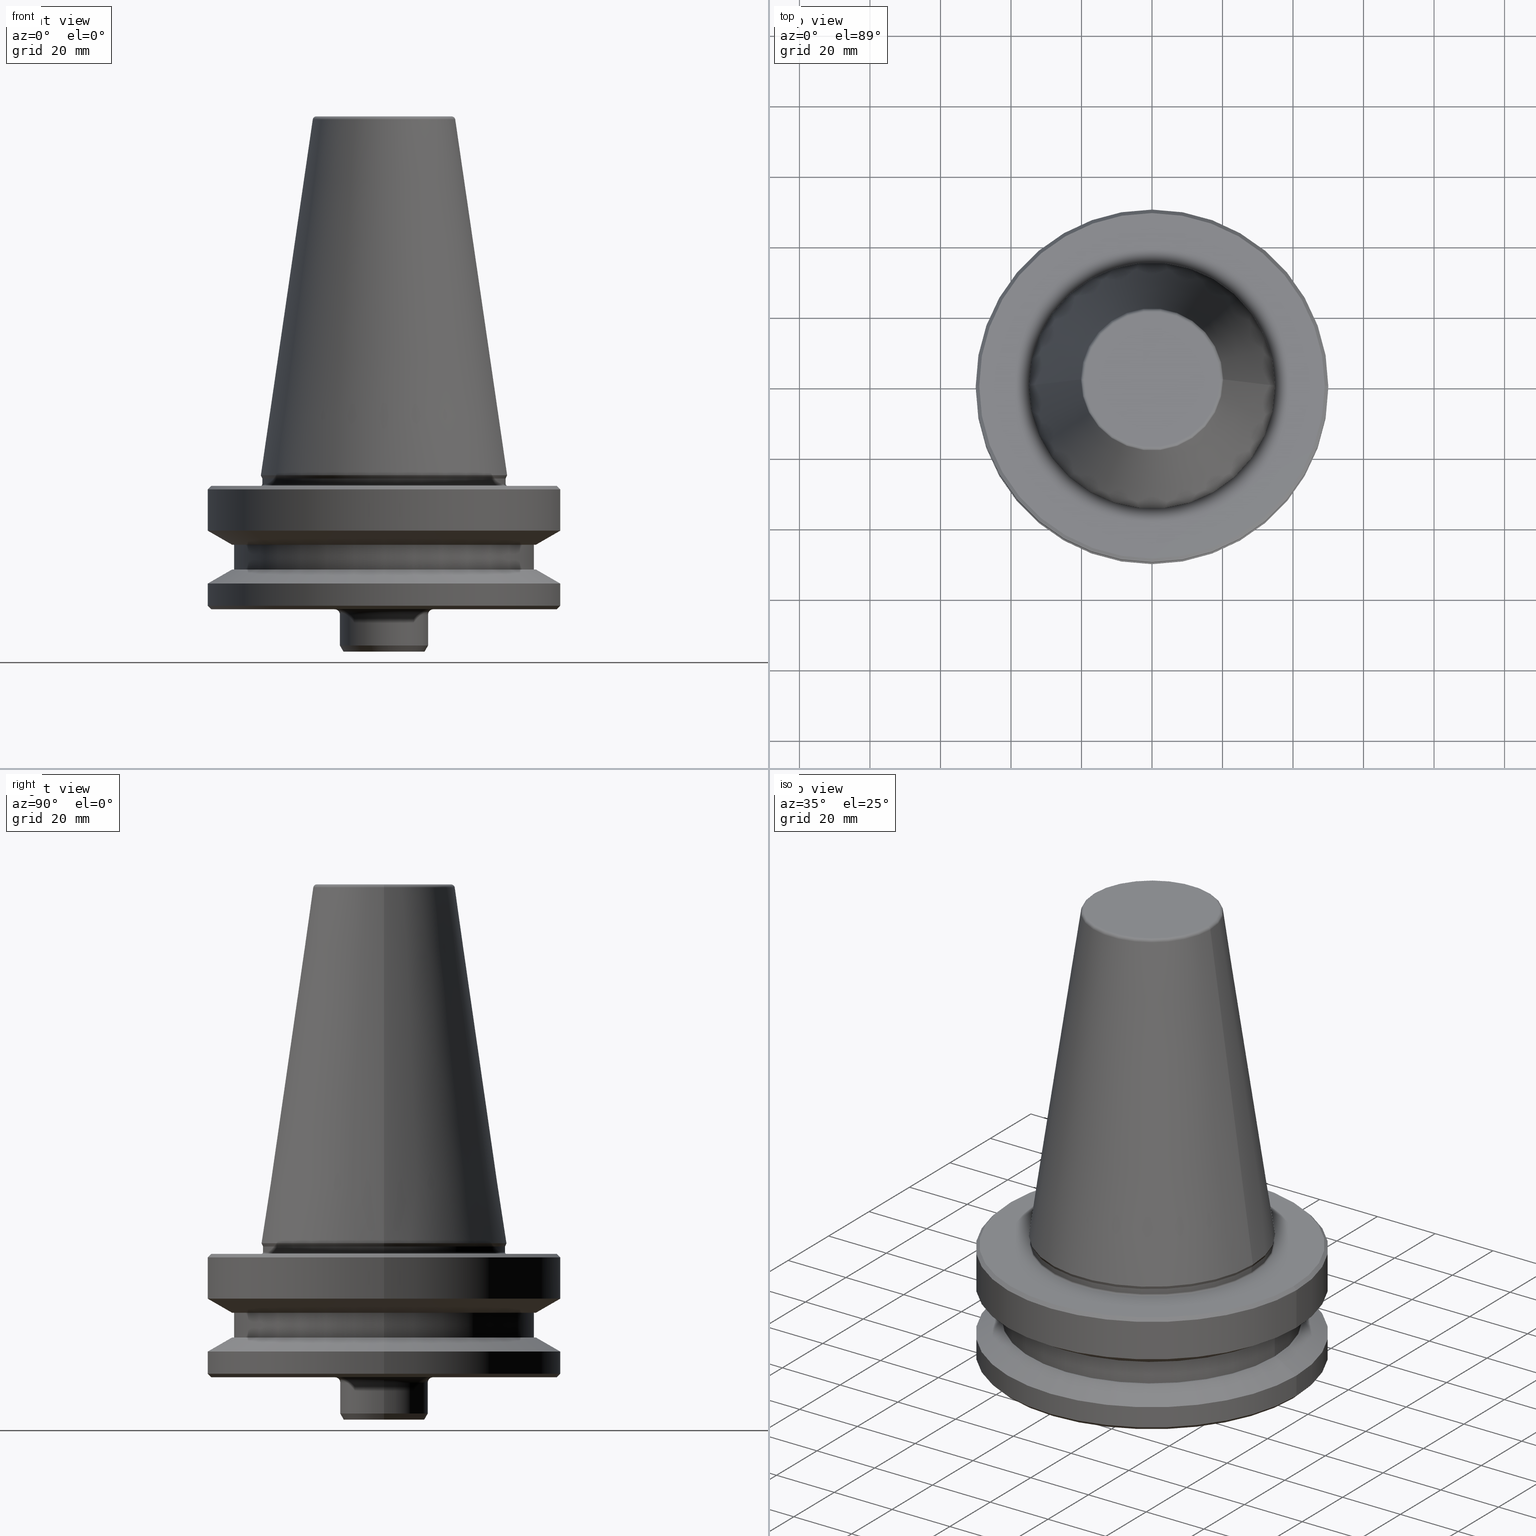
[diagram: canonical four-view strip — front | top / right | iso, engineering-drawing reading convention]
A machine part, canonical four-view strip (front | top / right | iso — engineering-drawing reading convention). The complete STEP part file that produces these views, byte-faithful:
ISO-10303-21;
HEADER;
FILE_DESCRIPTION (( 'STEP AP203' ),
    '1' );
FILE_NAME ('BT50 MT01 050 6.3G 15000 SL.STEP',
    '2019-05-24T05:06:06',
    ( '' ),
    ( '' ),
    'SwSTEP 2.0',
    'SolidWorks 2014',
    '' );
FILE_SCHEMA (( 'CONFIG_CONTROL_DESIGN' ));
ENDSEC;

DATA;
#1 = DIRECTION ( 'NONE',  ( -0.0000000000000000000, -0.0000000000000000000, 1.000000000000000000 ) ) ;
#2 = AXIS2_PLACEMENT_3D ( 'NONE', #58, #611, #130 ) ;
#3 = ORIENTED_EDGE ( 'NONE', *, *, #341, .T. ) ;
#4 = FACE_BOUND ( 'NONE', #266, .T. ) ;
#5 = CARTESIAN_POINT ( 'NONE',  ( 0.0000000000000000000, 11.50000000000027700, -49.99999999994098900 ) ) ;
#6 = EDGE_CURVE ( 'NONE', #360, #572, #415, .T. ) ;
#7 = CARTESIAN_POINT ( 'NONE',  ( 0.0000000000000000000, 0.0000000000000000000, -2.500000000001723100 ) ) ;
#8 = LINE ( 'NONE', #367, #169 ) ;
#9 = DIRECTION ( 'NONE',  ( -0.0000000000000000000, -0.0000000000000000000, 1.000000000000000000 ) ) ;
#10 = AXIS2_PLACEMENT_3D ( 'NONE', #356, #903, #431 ) ;
#11 = ORIENTED_EDGE ( 'NONE', *, *, #155, .T. ) ;
#12 = EDGE_CURVE ( 'NONE', #797, #309, #768, .T. ) ;
#13 = CIRCLE ( 'NONE', #26, 12.49999999999973400 ) ;
#14 = VERTEX_POINT ( 'NONE', #977 ) ;
#15 = EDGE_CURVE ( 'NONE', #566, #395, #452, .T. ) ;
#16 = FACE_OUTER_BOUND ( 'NONE', #398, .T. ) ;
#17 = APPROVAL_STATUS ( 'not_yet_approved' ) ;
#18 = VERTEX_POINT ( 'NONE', #202 ) ;
#19 = EDGE_LOOP ( 'NONE', ( #101, #235, #921, #789 ) ) ;
#20 = DIRECTION ( 'NONE',  ( -0.0000000000000000000, -0.0000000000000000000, 1.000000000000000000 ) ) ;
#21 = AXIS2_PLACEMENT_3D ( 'NONE', #775, #382, #491 ) ;
#22 = EDGE_CURVE ( 'NONE', #625, #395, #966, .T. ) ;
#23 = CARTESIAN_POINT ( 'NONE',  ( 0.0000000000000000000, 19.21428366486965800, 101.7999999999988900 ) ) ;
#24 = EDGE_LOOP ( 'NONE', ( #562, #786 ) ) ;
#25 = FACE_OUTER_BOUND ( 'NONE', #824, .T. ) ;
#26 = AXIS2_PLACEMENT_3D ( 'NONE', #183, #719, #258 ) ;
#27 = ORIENTED_EDGE ( 'NONE', *, *, #168, .F. ) ;
#28 = AXIS2_PLACEMENT_3D ( 'NONE', #441, #987, #532 ) ;
#29 = DIRECTION ( 'NONE',  ( -0.4999999999999811800, 6.123233995736535500E-017, 0.8660254037844494800 ) ) ;
#30 = EDGE_CURVE ( 'NONE', #811, #14, #914, .T. ) ;
#31 = DIRECTION ( 'NONE',  ( 1.000000000000000000, 0.0000000000000000000, 0.0000000000000000000 ) ) ;
#32 = FACE_OUTER_BOUND ( 'NONE', #116, .T. ) ;
#33 = CIRCLE ( 'NONE', #159, 34.49999999999997200 ) ;
#34 = PERSON_AND_ORGANIZATION_ROLE ( 'creator' ) ;
#35 = AXIS2_PLACEMENT_3D ( 'NONE', #554, #75, #630 ) ;
#36 = EDGE_CURVE ( 'NONE', #300, #654, #499, .T. ) ;
#37 = CARTESIAN_POINT ( 'NONE',  ( 34.92499999999964900, 0.0000000000000000000, -1.084202172485504400E-016 ) ) ;
#38 = CONICAL_SURFACE ( 'NONE', #573, 34.92499999999964900, 0.1448138426689043500 ) ;
#39 = ORIENTED_EDGE ( 'NONE', *, *, #725, .T. ) ;
#40 = CARTESIAN_POINT ( 'NONE',  ( 13.99999999999976200, 0.0000000000000000000, -39.49999999994122400 ) ) ;
#41 = DIRECTION ( 'NONE',  ( -0.0000000000000000000, -0.0000000000000000000, 1.000000000000000000 ) ) ;
#42 = ORIENTED_EDGE ( 'NONE', *, *, #725, .F. ) ;
#43 = AXIS2_PLACEMENT_3D ( 'NONE', #832, #934, #508 ) ;
#44 = CARTESIAN_POINT ( 'NONE',  ( 0.0000000000000000000, 0.0000000000000000000, 108.3108805077434200 ) ) ;
#45 = TOROIDAL_SURFACE ( 'NONE', #641, 13.99999999999976200, 1.500000000000032600 ) ;
#46 = CIRCLE ( 'NONE', #170, 49.00000000000015600 ) ;
#47 = CC_DESIGN_APPROVAL ( #390, ( #433 ) ) ;
#48 = CARTESIAN_POINT ( 'NONE',  ( -48.99999999999970900, 6.062001655779369300E-015, -37.99999999994118100 ) ) ;
#49 = DIRECTION ( 'NONE',  ( -0.0000000000000000000, -0.0000000000000000000, 1.000000000000000000 ) ) ;
#50 = CONICAL_SURFACE ( 'NONE', #767, 50.00000000000027000, 0.7853981633974482800 ) ;
#51 = DIRECTION ( 'NONE',  ( 1.000000000000000000, 0.0000000000000000000, 0.0000000000000000000 ) ) ;
#52 = CARTESIAN_POINT ( 'NONE',  ( -48.99999999999970900, 6.000769315821995400E-015, -37.99999999994118100 ) ) ;
#53 = CIRCLE ( 'NONE', #178, 34.50000000000019900 ) ;
#54 = DIRECTION ( 'NONE',  ( 0.4999999999999811800, 0.0000000000000000000, 0.8660254037844494800 ) ) ;
#55 = DIRECTION ( 'NONE',  ( 0.4226182617406567000, 0.0000000000000000000, 0.9063077870366700300 ) ) ;
#56 = EDGE_LOOP ( 'NONE', ( #901, #91, #796, #596 ) ) ;
#57 = DIRECTION ( 'NONE',  ( 1.000000000000000000, 0.0000000000000000000, 0.0000000000000000000 ) ) ;
#58 = CARTESIAN_POINT ( 'NONE',  ( 0.0000000000000000000, 0.0000000000000000000, -39.49999999994123800 ) ) ;
#59 = EDGE_CURVE ( 'NONE', #631, #540, #8, .T. ) ;
#60 = ORIENTED_EDGE ( 'NONE', *, *, #66, .T. ) ;
#61 = CC_DESIGN_DATE_AND_TIME_ASSIGNMENT ( #358, #477, ( #673 ) ) ;
#62 = CARTESIAN_POINT ( 'NONE',  ( -50.00000000000027000, 6.123233995736798400E-015, -4.000000000001335800 ) ) ;
#63 = FACE_OUTER_BOUND ( 'NONE', #106, .T. ) ;
#64 = CONICAL_SURFACE ( 'NONE', #855, 43.07217782649175300, 1.047197551196595400 ) ;
#65 = DIRECTION ( 'NONE',  ( 1.000000000000000000, 0.0000000000000000000, 0.0000000000000000000 ) ) ;
#66 = EDGE_CURVE ( 'NONE', #85, #360, #506, .T. ) ;
#67 = ORIENTED_EDGE ( 'NONE', *, *, #419, .F. ) ;
#68 = PERSON_AND_ORGANIZATION ( #112, #458 ) ;
#69 = EDGE_CURVE ( 'NONE', #378, #18, #544, .T. ) ;
#70 = LINE ( 'NONE', #52, #720 ) ;
#71 = AXIS2_PLACEMENT_3D ( 'NONE', #985, #689, #222 ) ;
#72 = CARTESIAN_POINT ( 'NONE',  ( -34.49999999999997200, 4.225031457058372100E-015, -0.9114154412159791700 ) ) ;
#73 = FACE_OUTER_BOUND ( 'NONE', #621, .T. ) ;
#74 = DIRECTION ( 'NONE',  ( -0.0000000000000000000, -0.0000000000000000000, 1.000000000000000000 ) ) ;
#75 = DIRECTION ( 'NONE',  ( 0.0000000000000000000, -1.000000000000000000, 0.0000000000000000000 ) ) ;
#76 = DIRECTION ( 'NONE',  ( 1.000000000000000000, 0.0000000000000000000, 0.0000000000000000000 ) ) ;
#77 = VERTEX_POINT ( 'NONE', #456 ) ;
#78 = DIRECTION ( 'NONE',  ( 1.000000000000000000, 0.0000000000000000000, 0.0000000000000000000 ) ) ;
#79 = CARTESIAN_POINT ( 'NONE',  ( 49.99999999999982200, 0.0000000000000000000, -36.99999999994106800 ) ) ;
#80 = EDGE_CURVE ( 'NONE', #566, #256, #822, .T. ) ;
#81 = COORDINATED_UNIVERSAL_TIME_OFFSET ( 5, 30, .AHEAD. ) ;
#82 = LINE ( 'NONE', #647, #878 ) ;
#83 = ORIENTED_EDGE ( 'NONE', *, *, #22, .T. ) ;
#84 = EDGE_CURVE ( 'NONE', #18, #572, #650, .T. ) ;
#85 = VERTEX_POINT ( 'NONE', #225 ) ;
#86 = LINE ( 'NONE', #369, #252 ) ;
#87 = DIRECTION ( 'NONE',  ( 1.000000000000000000, 0.0000000000000000000, 0.0000000000000000000 ) ) ;
#88 = FACE_OUTER_BOUND ( 'NONE', #492, .T. ) ;
#89 = CARTESIAN_POINT ( 'NONE',  ( 48.99999999999970900, 0.0000000000000000000, -37.99999999994118100 ) ) ;
#90 = LINE ( 'NONE', #89, #179 ) ;
#91 = ORIENTED_EDGE ( 'NONE', *, *, #220, .T. ) ;
#92 = AXIS2_PLACEMENT_3D ( 'NONE', #995, #539, #65 ) ;
#93 = MANIFOLD_SOLID_BREP ( 'Revolve1', #623 ) ;
#94 = EDGE_CURVE ( 'NONE', #759, #639, #693, .T. ) ;
#95 = AXIS2_PLACEMENT_3D ( 'NONE', #440, #746, #586 ) ;
#96 = ORIENTED_EDGE ( 'NONE', *, *, #366, .F. ) ;
#97 = EDGE_LOOP ( 'NONE', ( #578, #847, #860, #480 ) ) ;
#98 = EDGE_CURVE ( 'NONE', #961, #391, #489, .T. ) ;
#99 = CARTESIAN_POINT ( 'NONE',  ( -43.07217782649175300, 5.274820470751872700E-015, -19.70000000000070300 ) ) ;
#100 = APPLICATION_PROTOCOL_DEFINITION ( 'international standard', 'config_control_design', 1994, #956 ) ;
#101 = ORIENTED_EDGE ( 'NONE', *, *, #619, .F. ) ;
#102 = DIRECTION ( 'NONE',  ( -0.0000000000000000000, -0.0000000000000000000, 1.000000000000000000 ) ) ;
#103 = CC_DESIGN_PERSON_AND_ORGANIZATION_ASSIGNMENT ( #638, #880, ( #433 ) ) ;
#104 = DIRECTION ( 'NONE',  ( -0.0000000000000000000, -0.0000000000000000000, 1.000000000000000000 ) ) ;
#105 = AXIS2_PLACEMENT_3D ( 'NONE', #413, #962, #505 ) ;
#106 = EDGE_LOOP ( 'NONE', ( #703, #210, #96, #1000 ) ) ;
#107 = EDGE_CURVE ( 'NONE', #759, #268, #90, .T. ) ;
#108 = DIRECTION ( 'NONE',  ( -0.0000000000000000000, -0.0000000000000000000, 1.000000000000000000 ) ) ;
#109 = ADVANCED_FACE ( 'NONE', ( #402 ), #50, .T. ) ;
#110 = FACE_OUTER_BOUND ( 'NONE', #651, .T. ) ;
#111 = DIRECTION ( 'NONE',  ( 1.000000000000000000, 0.0000000000000000000, 0.0000000000000000000 ) ) ;
#112 = PERSON ( 'UNSPECIFIED', 'UNSPECIFIED', 'UNSPECIFIED', ('UNSPECIFIED'), ('UNSPECIFIED'), ('UNSPECIFIED') ) ;
#113 = DIRECTION ( 'NONE',  ( 0.0000000000000000000, 0.0000000000000000000, -1.000000000000000000 ) ) ;
#114 = EDGE_CURVE ( 'NONE', #856, #268, #784, .T. ) ;
#115 = CARTESIAN_POINT ( 'NONE',  ( 0.0000000000000000000, 0.0000000000000000000, -3.000000000001223900 ) ) ;
#116 = EDGE_LOOP ( 'NONE', ( #593, #362, #138, #999 ) ) ;
#117 = ADVANCED_FACE ( 'NONE', ( #243 ), #792, .T. ) ;
#118 = FACE_OUTER_BOUND ( 'NONE', #375, .T. ) ;
#119 = CARTESIAN_POINT ( 'NONE',  ( 42.49999999999975800, 0.0000000000000000000, -26.69999999993998000 ) ) ;
#120 = AXIS2_PLACEMENT_3D ( 'NONE', #189, #104, #727 ) ;
#121 = ORIENTED_EDGE ( 'NONE', *, *, #944, .T. ) ;
#122 = ADVANCED_FACE ( 'NONE', ( #497 ), #902, .T. ) ;
#123 = DIRECTION ( 'NONE',  ( -0.0000000000000000000, -0.0000000000000000000, 1.000000000000000000 ) ) ;
#124 = CARTESIAN_POINT ( 'NONE',  ( 0.0000000000000000000, 0.0000000000000000000, -0.9114154412159791700 ) ) ;
#125 = EDGE_CURVE ( 'NONE', #77, #761, #536, .T. ) ;
#126 = EDGE_LOOP ( 'NONE', ( #182, #558, #150, #257 ) ) ;
#127 = ADVANCED_FACE ( 'NONE', ( #227 ), #685, .T. ) ;
#128 = FACE_OUTER_BOUND ( 'NONE', #948, .T. ) ;
#129 = FACE_OUTER_BOUND ( 'NONE', #570, .T. ) ;
#130 = DIRECTION ( 'NONE',  ( 1.000000000000000000, 0.0000000000000000000, 0.0000000000000000000 ) ) ;
#131 = EDGE_CURVE ( 'NONE', #391, #783, #648, .T. ) ;
#132 = AXIS2_PLACEMENT_3D ( 'NONE', #204, #123, #602 ) ;
#133 = VECTOR ( 'NONE', #233, 999.9999999999998900 ) ;
#134 = ORIENTED_EDGE ( 'NONE', *, *, #15, .T. ) ;
#135 = DIRECTION ( 'NONE',  ( -0.0000000000000000000, -0.0000000000000000000, 1.000000000000000000 ) ) ;
#136 = PRODUCT_DEFINITION_FORMATION_WITH_SPECIFIED_SOURCE ( 'ANY', '', #662, .NOT_KNOWN. ) ;
#137 = ORIENTED_EDGE ( 'NONE', *, *, #296, .F. ) ;
#138 = ORIENTED_EDGE ( 'NONE', *, *, #535, .T. ) ;
#139 = AXIS2_PLACEMENT_3D ( 'NONE', #302, #843, #380 ) ;
#140 = ORIENTED_EDGE ( 'NONE', *, *, #561, .T. ) ;
#141 = AXIS2_PLACEMENT_3D ( 'NONE', #124, #205, #974 ) ;
#142 = DIRECTION ( 'NONE',  ( 1.000000000000000000, 0.0000000000000000000, 0.0000000000000000000 ) ) ;
#143 = CIRCLE ( 'NONE', #841, 49.99999999999982200 ) ;
#144 = FACE_BOUND ( 'NONE', #24, .T. ) ;
#145 = DIRECTION ( 'NONE',  ( -0.0000000000000000000, -0.0000000000000000000, 1.000000000000000000 ) ) ;
#146 = CIRCLE ( 'NONE', #139, 50.00000000000027000 ) ;
#147 = DIRECTION ( 'NONE',  ( -0.0000000000000000000, -0.0000000000000000000, 1.000000000000000000 ) ) ;
#148 = PERSON_AND_ORGANIZATION ( #112, #458 ) ;
#149 = PLANE ( 'NONE',  #161 ) ;
#150 = ORIENTED_EDGE ( 'NONE', *, *, #584, .F. ) ;
#151 = CARTESIAN_POINT ( 'NONE',  ( 0.0000000000000000000, 0.0000000000000000000, -30.69977999671412400 ) ) ;
#152 = EDGE_CURVE ( 'NONE', #870, #844, #969, .T. ) ;
#153 = CARTESIAN_POINT ( 'NONE',  ( 34.49999999999997200, 0.0000000000000000000, -0.9114154412159791700 ) ) ;
#154 = DIRECTION ( 'NONE',  ( 0.0000000000000000000, -0.0000000000000000000, 1.000000000000000000 ) ) ;
#155 = EDGE_CURVE ( 'NONE', #268, #224, #498, .T. ) ;
#156 = VECTOR ( 'NONE', #145, 1000.000000000000000 ) ;
#157 = CARTESIAN_POINT ( 'NONE',  ( -19.21428366486965800, 2.413662506824916700E-015, 101.7999999999989900 ) ) ;
#158 = DATE_AND_TIME ( #782, #393 ) ;
#159 = AXIS2_PLACEMENT_3D ( 'NONE', #624, #147, #692 ) ;
#160 = COORDINATED_UNIVERSAL_TIME_OFFSET ( 5, 30, .AHEAD. ) ;
#161 = AXIS2_PLACEMENT_3D ( 'NONE', #548, #230, #771 ) ;
#162 = VERTEX_POINT ( 'NONE', #608 ) ;
#163 = CARTESIAN_POINT ( 'NONE',  ( 12.49999999999973400, 0.0000000000000000000, -39.49999999994123800 ) ) ;
#164 = COORDINATED_UNIVERSAL_TIME_OFFSET ( 5, 30, .AHEAD. ) ;
#165 = ORIENTED_EDGE ( 'NONE', *, *, #36, .F. ) ;
#166 = EDGE_LOOP ( 'NONE', ( #728, #213 ) ) ;
#167 = ORIENTED_EDGE ( 'NONE', *, *, #203, .T. ) ;
#168 = EDGE_CURVE ( 'NONE', #853, #391, #533, .T. ) ;
#169 = VECTOR ( 'NONE', #537, 1000.000000000000000 ) ;
#170 = AXIS2_PLACEMENT_3D ( 'NONE', #553, #74, #629 ) ;
#171 = APPROVAL_DATE_TIME ( #601, #223 ) ;
#172 = CALENDAR_DATE ( 2019, 24, 5 ) ;
#173 = PERSON_AND_ORGANIZATION ( #112, #458 ) ;
#174 = CALENDAR_DATE ( 2019, 24, 5 ) ;
#175 = AXIS2_PLACEMENT_3D ( 'NONE', #325, #872, #407 ) ;
#176 = EDGE_LOOP ( 'NONE', ( #590, #707, #644, #526 ) ) ;
#177 = LOCAL_TIME ( 10, 36, 6.000000000000000000, #773 ) ;
#178 = AXIS2_PLACEMENT_3D ( 'NONE', #686, #303, #845 ) ;
#179 = VECTOR ( 'NONE', #816, 1000.000000000000000 ) ;
#180 = CARTESIAN_POINT ( 'NONE',  ( 0.0000000000000000000, 0.0000000000000000000, 0.0000000000000000000 ) ) ;
#181 = ORIENTED_EDGE ( 'NONE', *, *, #6, .F. ) ;
#182 = ORIENTED_EDGE ( 'NONE', *, *, #255, .T. ) ;
#183 = CARTESIAN_POINT ( 'NONE',  ( 0.0000000000000000000, 0.0000000000000000000, -39.49999999994123800 ) ) ;
#184 = AXIS2_PLACEMENT_3D ( 'NONE', #670, #200, #742 ) ;
#185 = PERSON_AND_ORGANIZATION_ROLE ( 'design_owner' ) ;
#186 = ORIENTED_EDGE ( 'NONE', *, *, #963, .F. ) ;
#187 = CARTESIAN_POINT ( 'NONE',  ( 0.0000000000000000000, 0.0000000000000000000, -49.99999999994099700 ) ) ;
#188 = ORIENTED_EDGE ( 'NONE', *, *, #12, .F. ) ;
#189 = CARTESIAN_POINT ( 'NONE',  ( 0.0000000000000000000, 0.0000000000000000000, -19.70000000000070300 ) ) ;
#190 = AXIS2_PLACEMENT_3D ( 'NONE', #192, #737, #271 ) ;
#191 = EDGE_LOOP ( 'NONE', ( #295, #867, #248, #186 ) ) ;
#192 = CARTESIAN_POINT ( 'NONE',  ( 0.0000000000000000000, 0.0000000000000000000, -19.70000000000070300 ) ) ;
#193 = CARTESIAN_POINT ( 'NONE',  ( 50.00000000000027000, 0.0000000000000000000, -4.000000000001335800 ) ) ;
#194 = ORIENTED_EDGE ( 'NONE', *, *, #131, .T. ) ;
#195 = DIRECTION ( 'NONE',  ( 1.000000000000000000, 0.0000000000000000000, 0.0000000000000000000 ) ) ;
#196 = ORIENTED_EDGE ( 'NONE', *, *, #963, .T. ) ;
#197 = CARTESIAN_POINT ( 'NONE',  ( 0.0000000000000000000, 0.0000000000000000000, -49.99999999994099700 ) ) ;
#198 = CARTESIAN_POINT ( 'NONE',  ( 0.0000000000000000000, 0.0000000000000000000, -0.9114154412159791700 ) ) ;
#199 = EDGE_LOOP ( 'NONE', ( #134, #167, #244, #642 ) ) ;
#200 = DIRECTION ( 'NONE',  ( -0.0000000000000000000, -0.0000000000000000000, 1.000000000000000000 ) ) ;
#201 = CIRCLE ( 'NONE', #190, 43.07217782649175300 ) ;
#202 = CARTESIAN_POINT ( 'NONE',  ( -50.00000000000027000, 6.123233995736798400E-015, -15.70022000322768300 ) ) ;
#203 = EDGE_CURVE ( 'NONE', #395, #14, #609, .T. ) ;
#204 = CARTESIAN_POINT ( 'NONE',  ( 0.0000000000000000000, 0.0000000000000000000, 108.3108805077434200 ) ) ;
#205 = DIRECTION ( 'NONE',  ( -0.0000000000000000000, -0.0000000000000000000, 1.000000000000000000 ) ) ;
#206 = VECTOR ( 'NONE', #346, 1000.000000000000000 ) ;
#207 = VECTOR ( 'NONE', #364, 1000.000000000000000 ) ;
#208 = CARTESIAN_POINT ( 'NONE',  ( 0.0000000000000000000, 0.0000000000000000000, -2.500000000001723100 ) ) ;
#209 = CARTESIAN_POINT ( 'NONE',  ( 0.0000000000000000000, 0.0000000000000000000, -26.69999999993998000 ) ) ;
#210 = ORIENTED_EDGE ( 'NONE', *, *, #371, .T. ) ;
#211 = CC_DESIGN_SECURITY_CLASSIFICATION ( #673, ( #136 ) ) ;
#212 = CARTESIAN_POINT ( 'NONE',  ( 20.20381645192181700, 3.375666430431378500E-015, 100.9443082234284800 ) ) ;
#213 = ORIENTED_EDGE ( 'NONE', *, *, #762, .F. ) ;
#214 = CARTESIAN_POINT ( 'NONE',  ( -13.99999999999976200, 1.714505518806265500E-015, -39.49999999994122400 ) ) ;
#215 = CARTESIAN_POINT ( 'NONE',  ( 0.0000000000000000000, 0.0000000000000000000, -30.69977999671412400 ) ) ;
#216 = COORDINATED_UNIVERSAL_TIME_OFFSET ( 5, 30, .AHEAD. ) ;
#217 = FACE_OUTER_BOUND ( 'NONE', #455, .T. ) ;
#218 = EDGE_CURVE ( 'NONE', #797, #853, #897, .T. ) ;
#219 = CARTESIAN_POINT ( 'NONE',  ( 0.0000000000000000000, 0.0000000000000000000, -0.9114154412159791700 ) ) ;
#220 = EDGE_CURVE ( 'NONE', #377, #557, #858, .T. ) ;
#221 = CIRCLE ( 'NONE', #10, 42.49999999999975800 ) ;
#222 = DIRECTION ( 'NONE',  ( 1.000000000000000000, 0.0000000000000000000, 0.0000000000000000000 ) ) ;
#223 = APPROVAL ( #17, 'UNSPECIFIED' ) ;
#224 = VERTEX_POINT ( 'NONE', #968 ) ;
#225 = CARTESIAN_POINT ( 'NONE',  ( 49.00000000000015600, 6.062001655779424500E-015, -3.000000000001223900 ) ) ;
#226 = ORIENTED_EDGE ( 'NONE', *, *, #84, .F. ) ;
#227 = FACE_OUTER_BOUND ( 'NONE', #355, .T. ) ;
#228 = CIRCLE ( 'NONE', #260, 43.07217782648930900 ) ;
#229 = CYLINDRICAL_SURFACE ( 'NONE', #291, 49.99999999999982200 ) ;
#230 = DIRECTION ( 'NONE',  ( 0.0000000000000000000, -0.0000000000000000000, 1.000000000000000000 ) ) ;
#231 = CYLINDRICAL_SURFACE ( 'NONE', #21, 12.49999999999973400 ) ;
#232 = DIRECTION ( 'NONE',  ( -0.1443082234293895400, 0.0000000000000000000, -0.9895327870518760800 ) ) ;
#233 = DIRECTION ( 'NONE',  ( -0.4226182617406567000, 5.175581015019135500E-017, 0.9063077870366700300 ) ) ;
#234 = AXIS2_PLACEMENT_3D ( 'NONE', #483, #20, #569 ) ;
#235 = ORIENTED_EDGE ( 'NONE', *, *, #218, .T. ) ;
#236 = CARTESIAN_POINT ( 'NONE',  ( 0.0000000000000000000, 0.0000000000000000000, -26.69999999993998000 ) ) ;
#237 = ORIENTED_EDGE ( 'NONE', *, *, #246, .F. ) ;
#238 = ORIENTED_EDGE ( 'NONE', *, *, #114, .F. ) ;
#239 = CARTESIAN_POINT ( 'NONE',  ( 0.0000000000000000000, 0.0000000000000000000, -36.99999999994106800 ) ) ;
#240 = AXIS2_PLACEMENT_3D ( 'NONE', #187, #957, #724 ) ;
#241 = AXIS2_PLACEMENT_3D ( 'NONE', #236, #778, #31 ) ;
#242 = FACE_OUTER_BOUND ( 'NONE', #176, .T. ) ;
#243 = FACE_OUTER_BOUND ( 'NONE', #658, .T. ) ;
#244 = ORIENTED_EDGE ( 'NONE', *, *, #530, .F. ) ;
#245 = CIRCLE ( 'NONE', #92, 19.21428366486965800 ) ;
#246 = EDGE_CURVE ( 'NONE', #945, #625, #875, .T. ) ;
#247 = VERTEX_POINT ( 'NONE', #826 ) ;
#248 = ORIENTED_EDGE ( 'NONE', *, *, #762, .T. ) ;
#249 = ADVANCED_BREP_SHAPE_REPRESENTATION ( 'BT50 MT01 050 6.3G 15000 SL', ( #93, #451 ), #297 ) ;
#250 = AXIS2_PLACEMENT_3D ( 'NONE', #637, #907, #983 ) ;
#251 = SHAPE_DEFINITION_REPRESENTATION ( #577, #249 ) ;
#252 = VECTOR ( 'NONE', #450, 1000.000000000000000 ) ;
#253 = ORIENTED_EDGE ( 'NONE', *, *, #403, .T. ) ;
#254 = AXIS2_PLACEMENT_3D ( 'NONE', #322, #865, #400 ) ;
#255 = EDGE_CURVE ( 'NONE', #268, #856, #319, .T. ) ;
#256 = VERTEX_POINT ( 'NONE', #163 ) ;
#257 = ORIENTED_EDGE ( 'NONE', *, *, #155, .F. ) ;
#258 = DIRECTION ( 'NONE',  ( 1.000000000000000000, 0.0000000000000000000, 0.0000000000000000000 ) ) ;
#259 = CALENDAR_DATE ( 2019, 24, 5 ) ;
#260 = AXIS2_PLACEMENT_3D ( 'NONE', #462, #1, #551 ) ;
#261 = APPLICATION_PROTOCOL_DEFINITION ( 'international standard', 'config_control_design', 1994, #722 ) ;
#262 = CARTESIAN_POINT ( 'NONE',  ( 0.0000000000000000000, 43.07217782649175300, -19.70000000000071700 ) ) ;
#263 = AXIS2_PLACEMENT_3D ( 'NONE', #730, #267, #809 ) ;
#264 = VERTEX_POINT ( 'NONE', #157 ) ;
#265 = CARTESIAN_POINT ( 'NONE',  ( 0.0000000000000000000, 0.0000000000000000000, -37.99999999994118100 ) ) ;
#266 = EDGE_LOOP ( 'NONE', ( #780, #928 ) ) ;
#267 = DIRECTION ( 'NONE',  ( -0.0000000000000000000, -0.0000000000000000000, 1.000000000000000000 ) ) ;
#268 = VERTEX_POINT ( 'NONE', #79 ) ;
#269 = CARTESIAN_POINT ( 'NONE',  ( -12.49999999999973400, 1.530808498934158800E-015, 108.3108805077434200 ) ) ;
#270 = FACE_OUTER_BOUND ( 'NONE', #19, .T. ) ;
#271 = DIRECTION ( 'NONE',  ( 1.000000000000000000, 0.0000000000000000000, 0.0000000000000000000 ) ) ;
#272 = DIRECTION ( 'NONE',  ( 1.000000000000000000, 0.0000000000000000000, 0.0000000000000000000 ) ) ;
#273 = CIRCLE ( 'NONE', #607, 13.99999999999976200 ) ;
#274 = DIRECTION ( 'NONE',  ( 1.000000000000000000, 0.0000000000000000000, 0.0000000000000000000 ) ) ;
#275 = DIRECTION ( 'NONE',  ( 1.000000000000000000, 0.0000000000000000000, 0.0000000000000000000 ) ) ;
#276 = ADVANCED_FACE ( 'NONE', ( #418 ), #289, .T. ) ;
#277 = DIRECTION ( 'NONE',  ( -0.0000000000000000000, -0.0000000000000000000, 1.000000000000000000 ) ) ;
#278 = VECTOR ( 'NONE', #992, 1000.000000000000000 ) ;
#279 = CARTESIAN_POINT ( 'NONE',  ( 0.0000000000000000000, 43.07217782648930900, -26.69999999993999400 ) ) ;
#280 = EDGE_CURVE ( 'NONE', #811, #715, #485, .T. ) ;
#281 = ORIENTED_EDGE ( 'NONE', *, *, #944, .F. ) ;
#282 = DIRECTION ( 'NONE',  ( -0.0000000000000000000, -0.0000000000000000000, 1.000000000000000000 ) ) ;
#283 = DIRECTION ( 'NONE',  ( -1.000000000000000000, 0.0000000000000000000, 0.0000000000000000000 ) ) ;
#284 = DIRECTION ( 'NONE',  ( 1.000000000000000000, 0.0000000000000000000, 0.0000000000000000000 ) ) ;
#285 = FACE_OUTER_BOUND ( 'NONE', #549, .T. ) ;
#286 = CARTESIAN_POINT ( 'NONE',  ( 0.0000000000000000000, 0.0000000000000000000, -30.69977999671412400 ) ) ;
#287 = EDGE_CURVE ( 'NONE', #377, #264, #575, .T. ) ;
#288 = ADVANCED_FACE ( 'NONE', ( #547 ), #404, .F. ) ;
#289 = TOROIDAL_SURFACE ( 'NONE', #250, 19.21428366486965800, 1.000000000000100100 ) ;
#290 = DIRECTION ( 'NONE',  ( -1.000000000000000000, 1.224646799147353500E-016, 0.0000000000000000000 ) ) ;
#291 = AXIS2_PLACEMENT_3D ( 'NONE', #44, #424, #668 ) ;
#292 = DIRECTION ( 'NONE',  ( -1.000000000000000000, 0.0000000000000000000, 0.0000000000000000000 ) ) ;
#293 = DIRECTION ( 'NONE',  ( -0.0000000000000000000, -0.0000000000000000000, 1.000000000000000000 ) ) ;
#294 = ORIENTED_EDGE ( 'NONE', *, *, #849, .F. ) ;
#295 = ORIENTED_EDGE ( 'NONE', *, *, #218, .F. ) ;
#296 = EDGE_CURVE ( 'NONE', #761, #540, #568, .T. ) ;
#297 =( GEOMETRIC_REPRESENTATION_CONTEXT ( 3 ) GLOBAL_UNCERTAINTY_ASSIGNED_CONTEXT ( ( #353 ) ) GLOBAL_UNIT_ASSIGNED_CONTEXT ( ( #800, #327, #874 ) ) REPRESENTATION_CONTEXT ( 'NONE', 'WORKASPACE' ) );
#298 = FACE_OUTER_BOUND ( 'NONE', #677, .T. ) ;
#299 = CARTESIAN_POINT ( 'NONE',  ( 43.07217782648930900, 5.699027233244158500E-015, -26.69999999993998000 ) ) ;
#300 = VERTEX_POINT ( 'NONE', #610 ) ;
#301 = EDGE_CURVE ( 'NONE', #540, #761, #427, .T. ) ;
#302 = CARTESIAN_POINT ( 'NONE',  ( 0.0000000000000000000, 0.0000000000000000000, -15.70022000322768300 ) ) ;
#303 = DIRECTION ( 'NONE',  ( -0.0000000000000000000, -0.0000000000000000000, 1.000000000000000000 ) ) ;
#304 = ORIENTED_EDGE ( 'NONE', *, *, #447, .T. ) ;
#305 = DIRECTION ( 'NONE',  ( 1.000000000000000000, 0.0000000000000000000, 0.0000000000000000000 ) ) ;
#306 = DIRECTION ( 'NONE',  ( -0.0000000000000000000, -0.0000000000000000000, 1.000000000000000000 ) ) ;
#307 = AXIS2_PLACEMENT_3D ( 'NONE', #774, #306, #850 ) ;
#308 = DIRECTION ( 'NONE',  ( -0.0000000000000000000, -0.0000000000000000000, 1.000000000000000000 ) ) ;
#309 = VERTEX_POINT ( 'NONE', #801 ) ;
#310 = CIRCLE ( 'NONE', #891, 1.500000000000029100 ) ;
#311 = CIRCLE ( 'NONE', #263, 34.99999999999992200 ) ;
#312 = ORIENTED_EDGE ( 'NONE', *, *, #419, .T. ) ;
#313 = ORIENTED_EDGE ( 'NONE', *, *, #69, .T. ) ;
#314 = EDGE_LOOP ( 'NONE', ( #721, #842, #338, #466 ) ) ;
#315 = ADVANCED_FACE ( 'NONE', ( #546 ), #806, .T. ) ;
#316 = CIRCLE ( 'NONE', #43, 50.00000000000027000 ) ;
#317 = ORIENTED_EDGE ( 'NONE', *, *, #280, .T. ) ;
#318 = DIRECTION ( 'NONE',  ( -0.0000000000000000000, -0.0000000000000000000, 1.000000000000000000 ) ) ;
#319 = CIRCLE ( 'NONE', #994, 49.99999999999982200 ) ;
#320 = VECTOR ( 'NONE', #372, 1000.000000000000000 ) ;
#321 = VECTOR ( 'NONE', #488, 999.9999999999998900 ) ;
#322 = CARTESIAN_POINT ( 'NONE',  ( 0.0000000000000000000, 0.0000000000000000000, 100.9443082234284800 ) ) ;
#323 = VERTEX_POINT ( 'NONE', #336 ) ;
#324 = DIRECTION ( 'NONE',  ( 0.0000000000000000000, -1.000000000000000000, 0.0000000000000000000 ) ) ;
#325 = CARTESIAN_POINT ( 'NONE',  ( 0.0000000000000000000, 0.0000000000000000000, -48.26794919237296700 ) ) ;
#326 = CIRCLE ( 'NONE', #307, 34.92499999999964900 ) ;
#327 =( NAMED_UNIT ( * ) PLANE_ANGLE_UNIT ( ) SI_UNIT ( $, .RADIAN. ) );
#328 = CYLINDRICAL_SURFACE ( 'NONE', #95, 42.49999999999975800 ) ;
#329 = CARTESIAN_POINT ( 'NONE',  ( 0.0000000000000000000, 0.0000000000000000000, -19.70000000000070300 ) ) ;
#330 = ADVANCED_FACE ( 'NONE', ( #16, #144 ), #414, .F. ) ;
#331 = EDGE_CURVE ( 'NONE', #395, #566, #943, .T. ) ;
#332 = ORIENTED_EDGE ( 'NONE', *, *, #636, .F. ) ;
#333 = AXIS2_PLACEMENT_3D ( 'NONE', #664, #735, #111 ) ;
#334 = APPROVAL_ROLE ( '' ) ;
#335 = PLANE ( 'NONE',  #105 ) ;
#336 = CARTESIAN_POINT ( 'NONE',  ( -34.92499999999964900, 4.277078946022088300E-015, -1.084202172485504400E-016 ) ) ;
#337 = EDGE_LOOP ( 'NONE', ( #237, #788 ) ) ;
#338 = ORIENTED_EDGE ( 'NONE', *, *, #509, .T. ) ;
#339 = DIRECTION ( 'NONE',  ( -0.0000000000000000000, -0.0000000000000000000, 1.000000000000000000 ) ) ;
#340 = FACE_OUTER_BOUND ( 'NONE', #97, .T. ) ;
#341 = EDGE_CURVE ( 'NONE', #715, #256, #310, .T. ) ;
#342 = CIRCLE ( 'NONE', #459, 34.99999999999992200 ) ;
#343 = CARTESIAN_POINT ( 'NONE',  ( -34.50000000000019900, 4.255647627037059800E-015, -2.500000000001723100 ) ) ;
#344 = CARTESIAN_POINT ( 'NONE',  ( 0.0000000000000000000, 0.0000000000000000000, -48.26794919237296700 ) ) ;
#345 = LINE ( 'NONE', #713, #321 ) ;
#346 = DIRECTION ( 'NONE',  ( -0.0000000000000000000, -0.0000000000000000000, 1.000000000000000000 ) ) ;
#347 = DIRECTION ( 'NONE',  ( -0.0000000000000000000, -0.0000000000000000000, 1.000000000000000000 ) ) ;
#348 = ORIENTED_EDGE ( 'NONE', *, *, #530, .T. ) ;
#349 = CARTESIAN_POINT ( 'NONE',  ( -12.49999999999973500, 1.530808498934159200E-015, -48.26794919237296700 ) ) ;
#350 = DIRECTION ( 'NONE',  ( -0.0000000000000000000, -0.0000000000000000000, 1.000000000000000000 ) ) ;
#351 = AXIS2_PLACEMENT_3D ( 'NONE', #279, #820, #357 ) ;
#352 = DIRECTION ( 'NONE',  ( 0.0000000000000000000, 0.0000000000000000000, -1.000000000000000000 ) ) ;
#353 = UNCERTAINTY_MEASURE_WITH_UNIT (LENGTH_MEASURE( 1.000000000000000100E-005 ), #800, 'distance_accuracy_value', 'NONE');
#354 = ADVANCED_FACE ( 'NONE', ( #217 ), #777, .T. ) ;
#355 = EDGE_LOOP ( 'NONE', ( #304, #652, #959, #885 ) ) ;
#356 = CARTESIAN_POINT ( 'NONE',  ( 0.0000000000000000000, 0.0000000000000000000, -26.69999999993998000 ) ) ;
#357 = DIRECTION ( 'NONE',  ( -1.000000000000000000, 0.0000000000000000000, -0.0000000000000000000 ) ) ;
#358 = DATE_AND_TIME ( #172, #177 ) ;
#359 = DIRECTION ( 'NONE',  ( -0.0000000000000000000, -0.0000000000000000000, 1.000000000000000000 ) ) ;
#360 = VERTEX_POINT ( 'NONE', #193 ) ;
#361 = EDGE_CURVE ( 'NONE', #85, #663, #46, .T. ) ;
#362 = ORIENTED_EDGE ( 'NONE', *, *, #478, .F. ) ;
#363 = EDGE_LOOP ( 'NONE', ( #886, #83, #484, #688 ) ) ;
#364 = DIRECTION ( 'NONE',  ( -0.0000000000000000000, -0.0000000000000000000, 1.000000000000000000 ) ) ;
#365 = DIRECTION ( 'NONE',  ( -0.8660254037844390400, 0.0000000000000000000, -0.4999999999999993300 ) ) ;
#366 = EDGE_CURVE ( 'NONE', #783, #323, #326, .T. ) ;
#367 = CARTESIAN_POINT ( 'NONE',  ( 42.49999999999975800, 0.0000000000000000000, 108.3108805077434200 ) ) ;
#368 = ORIENTED_EDGE ( 'NONE', *, *, #494, .F. ) ;
#369 = CARTESIAN_POINT ( 'NONE',  ( 49.99999999999982200, 6.123233995736744000E-015, -30.69977999671412400 ) ) ;
#370 = VECTOR ( 'NONE', #916, 999.9999999999998900 ) ;
#371 = EDGE_CURVE ( 'NONE', #961, #323, #394, .T. ) ;
#372 = DIRECTION ( 'NONE',  ( -0.7071067811865474600, 0.0000000000000000000, -0.7071067811865475700 ) ) ;
#373 = EDGE_LOOP ( 'NONE', ( #770, #538, #655, #524 ) ) ;
#374 = DIRECTION ( 'NONE',  ( -0.8660254037844376000, 1.060575238724905600E-016, 0.5000000000000020000 ) ) ;
#375 = EDGE_LOOP ( 'NONE', ( #708, #812, #717, #660 ) ) ;
#376 = FACE_OUTER_BOUND ( 'NONE', #314, .T. ) ;
#377 = VERTEX_POINT ( 'NONE', #386 ) ;
#378 = VERTEX_POINT ( 'NONE', #468 ) ;
#379 = ORIENTED_EDGE ( 'NONE', *, *, #700, .T. ) ;
#380 = DIRECTION ( 'NONE',  ( 1.000000000000000000, 0.0000000000000000000, 0.0000000000000000000 ) ) ;
#381 = ORIENTED_EDGE ( 'NONE', *, *, #949, .F. ) ;
#382 = DIRECTION ( 'NONE',  ( -0.0000000000000000000, -0.0000000000000000000, 1.000000000000000000 ) ) ;
#383 = PERSON_AND_ORGANIZATION ( #112, #458 ) ;
#384 = CONICAL_SURFACE ( 'NONE', #834, 48.99999999999970900, 0.7853981633974482800 ) ;
#385 = DIRECTION ( 'NONE',  ( -0.0000000000000000000, -0.0000000000000000000, 1.000000000000000000 ) ) ;
#386 = CARTESIAN_POINT ( 'NONE',  ( -20.20381645192181700, 0.0000000000000000000, 100.9443082234284800 ) ) ;
#387 = CARTESIAN_POINT ( 'NONE',  ( 0.0000000000000000000, 0.0000000000000000000, 100.7999999999988900 ) ) ;
#388 = AXIS2_PLACEMENT_3D ( 'NONE', #699, #634, #617 ) ;
#389 = CYLINDRICAL_SURFACE ( 'NONE', #938, 34.50000000000008500 ) ;
#390 = APPROVAL ( #804, 'UNSPECIFIED' ) ;
#391 = VERTEX_POINT ( 'NONE', #153 ) ;
#392 = ORIENTED_EDGE ( 'NONE', *, *, #125, .T. ) ;
#393 = LOCAL_TIME ( 10, 36, 6.000000000000000000, #160 ) ;
#394 = LINE ( 'NONE', #695, #133 ) ;
#395 = VERTEX_POINT ( 'NONE', #349 ) ;
#396 = FACE_OUTER_BOUND ( 'NONE', #463, .T. ) ;
#397 = DIRECTION ( 'NONE',  ( 1.000000000000000000, 0.0000000000000000000, 0.0000000000000000000 ) ) ;
#398 = EDGE_LOOP ( 'NONE', ( #461, #332 ) ) ;
#399 = EDGE_CURVE ( 'NONE', #77, #631, #671, .T. ) ;
#400 = DIRECTION ( 'NONE',  ( 1.000000000000000000, 0.0000000000000000000, 0.0000000000000000000 ) ) ;
#401 = PERSON_AND_ORGANIZATION ( #112, #458 ) ;
#402 = FACE_OUTER_BOUND ( 'NONE', #729, .T. ) ;
#403 = EDGE_CURVE ( 'NONE', #639, #759, #635, .T. ) ;
#404 = TOROIDAL_SURFACE ( 'NONE', #428, 34.99999999999992200, 0.4999999999997228900 ) ;
#405 = EDGE_CURVE ( 'NONE', #247, #264, #245, .T. ) ;
#406 = DIRECTION ( 'NONE',  ( 0.0000000000000000000, 0.0000000000000000000, -1.000000000000000000 ) ) ;
#407 = DIRECTION ( 'NONE',  ( 1.000000000000000000, 0.0000000000000000000, 0.0000000000000000000 ) ) ;
#408 = ORIENTED_EDGE ( 'NONE', *, *, #361, .F. ) ;
#409 = DIRECTION ( 'NONE',  ( 1.000000000000000000, 0.0000000000000000000, 0.0000000000000000000 ) ) ;
#410 = EDGE_CURVE ( 'NONE', #870, #224, #86, .T. ) ;
#411 = DATE_TIME_ROLE ( 'creation_date' ) ;
#412 = LINE ( 'NONE', #978, #942 ) ;
#413 = CARTESIAN_POINT ( 'NONE',  ( 0.0000000000000000000, 49.00000000000015600, -3.000000000001223900 ) ) ;
#414 = PLANE ( 'NONE',  #517 ) ;
#415 = CIRCLE ( 'NONE', #503, 50.00000000000027000 ) ;
#416 = ADVANCED_FACE ( 'NONE', ( #128 ), #817, .T. ) ;
#417 = CC_DESIGN_PERSON_AND_ORGANIZATION_ASSIGNMENT ( #863, #185, ( #662 ) ) ;
#418 = FACE_OUTER_BOUND ( 'NONE', #56, .T. ) ;
#419 = EDGE_CURVE ( 'NONE', #663, #572, #840, .T. ) ;
#420 = DIRECTION ( 'NONE',  ( 1.000000000000000000, 0.0000000000000000000, 0.0000000000000000000 ) ) ;
#421 = DIRECTION ( 'NONE',  ( 1.000000000000000000, 0.0000000000000000000, 0.0000000000000000000 ) ) ;
#422 = DIRECTION ( 'NONE',  ( 1.000000000000000000, 0.0000000000000000000, 0.0000000000000000000 ) ) ;
#423 = ORIENTED_EDGE ( 'NONE', *, *, #371, .F. ) ;
#424 = DIRECTION ( 'NONE',  ( -0.0000000000000000000, -0.0000000000000000000, 1.000000000000000000 ) ) ;
#425 = ADVANCED_FACE ( 'NONE', ( #63 ), #438, .T. ) ;
#426 = ADVANCED_FACE ( 'NONE', ( #376 ), #516, .T. ) ;
#427 = CIRCLE ( 'NONE', #980, 42.49999999999975800 ) ;
#428 = AXIS2_PLACEMENT_3D ( 'NONE', #208, #527, #57 ) ;
#429 = CALENDAR_DATE ( 2019, 24, 5 ) ;
#430 = VECTOR ( 'NONE', #54, 1000.000000000000000 ) ;
#431 = DIRECTION ( 'NONE',  ( 1.000000000000000000, 0.0000000000000000000, 0.0000000000000000000 ) ) ;
#432 = CIRCLE ( 'NONE', #866, 19.21428366486965800 ) ;
#433 = PRODUCT_DEFINITION ( 'UNKNOWN', '', #136, #793 ) ;
#434 = CARTESIAN_POINT ( 'NONE',  ( 0.0000000000000000000, 0.0000000000000000000, 108.3108805077434200 ) ) ;
#435 = DIRECTION ( 'NONE',  ( -0.0000000000000000000, -0.0000000000000000000, 1.000000000000000000 ) ) ;
#436 = ADVANCED_FACE ( 'NONE', ( #25 ), #752, .F. ) ;
#437 = CC_DESIGN_DATE_AND_TIME_ASSIGNMENT ( #445, #411, ( #433 ) ) ;
#438 = CONICAL_SURFACE ( 'NONE', #818, 34.49999999999997200, 0.4363323129985352000 ) ;
#439 = CARTESIAN_POINT ( 'NONE',  ( 0.0000000000000000000, 0.0000000000000000000, 108.3108805077434200 ) ) ;
#440 = CARTESIAN_POINT ( 'NONE',  ( 0.0000000000000000000, 0.0000000000000000000, 108.3108805077434200 ) ) ;
#441 = CARTESIAN_POINT ( 'NONE',  ( -19.21428366486965800, 2.353071098809190400E-015, 100.7999999999988900 ) ) ;
#442 = CARTESIAN_POINT ( 'NONE',  ( 0.0000000000000000000, 0.0000000000000000000, -19.70000000000070300 ) ) ;
#443 = EDGE_LOOP ( 'NONE', ( #583, #560, #312, #39 ) ) ;
#444 = DIRECTION ( 'NONE',  ( 0.0000000000000000000, 0.0000000000000000000, -1.000000000000000000 ) ) ;
#445 = DATE_AND_TIME ( #259, #831 ) ;
#446 = CARTESIAN_POINT ( 'NONE',  ( 50.00000000000027000, 6.123233995736798400E-015, -4.000000000001335800 ) ) ;
#447 = EDGE_CURVE ( 'NONE', #557, #377, #475, .T. ) ;
#448 = CYLINDRICAL_SURFACE ( 'NONE', #932, 12.49999999999973400 ) ;
#449 = CIRCLE ( 'NONE', #71, 34.92499999999964900 ) ;
#450 = DIRECTION ( 'NONE',  ( 0.8660254037844390400, 1.060575238724907400E-016, -0.4999999999999993300 ) ) ;
#451 = AXIS2_PLACEMENT_3D ( 'NONE', #180, #656, #580 ) ;
#452 = CIRCLE ( 'NONE', #175, 12.49999999999973500 ) ;
#453 = CARTESIAN_POINT ( 'NONE',  ( -34.99999999999992200, 4.286263797015727000E-015, -2.500000000001723100 ) ) ;
#454 = AXIS2_PLACEMENT_3D ( 'NONE', #899, #970, #973 ) ;
#455 = EDGE_LOOP ( 'NONE', ( #121, #633, #181, #381 ) ) ;
#456 = CARTESIAN_POINT ( 'NONE',  ( -42.49999999999975800, 5.204748896376221700E-015, -26.69999999993998000 ) ) ;
#457 = ORIENTED_EDGE ( 'NONE', *, *, #6, .T. ) ;
#458 = ORGANIZATION ( 'UNSPECIFIED', 'UNSPECIFIED', '' ) ;
#459 = AXIS2_PLACEMENT_3D ( 'NONE', #115, #667, #195 ) ;
#460 = DIRECTION ( 'NONE',  ( -0.0000000000000000000, -0.0000000000000000000, 1.000000000000000000 ) ) ;
#461 = ORIENTED_EDGE ( 'NONE', *, *, #825, .F. ) ;
#462 = CARTESIAN_POINT ( 'NONE',  ( 0.0000000000000000000, 0.0000000000000000000, -26.69999999993998000 ) ) ;
#463 = EDGE_LOOP ( 'NONE', ( #674, #993 ) ) ;
#464 = SECURITY_CLASSIFICATION_LEVEL ( 'unclassified' ) ;
#465 = CARTESIAN_POINT ( 'NONE',  ( 0.0000000000000000000, 0.0000000000000000000, -37.99999999994118100 ) ) ;
#466 = ORIENTED_EDGE ( 'NONE', *, *, #331, .F. ) ;
#467 = AXIS2_PLACEMENT_3D ( 'NONE', #197, #739, #274 ) ;
#468 = CARTESIAN_POINT ( 'NONE',  ( -43.07217782649175300, 5.699027233244335200E-015, -19.70000000000070300 ) ) ;
#469 = DIRECTION ( 'NONE',  ( -0.0000000000000000000, -0.0000000000000000000, 1.000000000000000000 ) ) ;
#470 = EDGE_CURVE ( 'NONE', #853, #797, #53, .T. ) ;
#471 = ORIENTED_EDGE ( 'NONE', *, *, #571, .F. ) ;
#472 = CARTESIAN_POINT ( 'NONE',  ( 0.0000000000000000000, 0.0000000000000000000, -49.99999999994099700 ) ) ;
#473 = APPROVAL_PERSON_ORGANIZATION ( #148, #622, #504 ) ;
#474 = FACE_OUTER_BOUND ( 'NONE', #126, .T. ) ;
#475 = CIRCLE ( 'NONE', #254, 20.20381645192181700 ) ;
#476 = AXIS2_PLACEMENT_3D ( 'NONE', #5, #154, #698 ) ;
#477 = DATE_TIME_ROLE ( 'classification_date' ) ;
#478 = EDGE_CURVE ( 'NONE', #844, #870, #228, .T. ) ;
#479 = ORIENTED_EDGE ( 'NONE', *, *, #114, .T. ) ;
#480 = ORIENTED_EDGE ( 'NONE', *, *, #998, .F. ) ;
#481 = ORIENTED_EDGE ( 'NONE', *, *, #447, .F. ) ;
#482 = CARTESIAN_POINT ( 'NONE',  ( 0.0000000000000000000, 0.0000000000000000000, -2.500000000001723100 ) ) ;
#483 = CARTESIAN_POINT ( 'NONE',  ( 0.0000000000000000000, 0.0000000000000000000, -37.99999999994118100 ) ) ;
#484 = ORIENTED_EDGE ( 'NONE', *, *, #15, .F. ) ;
#485 = CIRCLE ( 'NONE', #676, 13.99999999999976200 ) ;
#486 = VECTOR ( 'NONE', #620, 1000.000000000000000 ) ;
#487 = EDGE_CURVE ( 'NONE', #557, #783, #345, .T. ) ;
#488 = DIRECTION ( 'NONE',  ( 0.1443082234293895400, 1.767266039134429700E-017, -0.9895327870518760800 ) ) ;
#489 = CIRCLE ( 'NONE', #927, 34.49999999999997200 ) ;
#490 = VERTEX_POINT ( 'NONE', #930 ) ;
#491 = DIRECTION ( 'NONE',  ( 1.000000000000000000, 0.0000000000000000000, 0.0000000000000000000 ) ) ;
#492 = EDGE_LOOP ( 'NONE', ( #837, #833 ) ) ;
#493 = ORIENTED_EDGE ( 'NONE', *, *, #619, .T. ) ;
#494 = EDGE_CURVE ( 'NONE', #377, #323, #82, .T. ) ;
#495 = ADVANCED_FACE ( 'NONE', ( #567 ), #879, .T. ) ;
#496 = DATE_AND_TIME ( #174, #680 ) ;
#497 = FACE_OUTER_BOUND ( 'NONE', #933, .T. ) ;
#498 = LINE ( 'NONE', #678, #207 ) ;
#499 = LINE ( 'NONE', #830, #370 ) ;
#500 = AXIS2_PLACEMENT_3D ( 'NONE', #810, #347, #893 ) ;
#501 = ADVANCED_FACE ( 'NONE', ( #110 ), #384, .T. ) ;
#502 = ADVANCED_FACE ( 'NONE', ( #4, #88 ), #744, .F. ) ;
#503 = AXIS2_PLACEMENT_3D ( 'NONE', #520, #49, #600 ) ;
#504 = APPROVAL_ROLE ( '' ) ;
#505 = DIRECTION ( 'NONE',  ( -1.000000000000000000, 0.0000000000000000000, -0.0000000000000000000 ) ) ;
#506 = LINE ( 'NONE', #446, #278 ) ;
#507 = CARTESIAN_POINT ( 'NONE',  ( -42.49999999999975800, 5.204748896376221700E-015, -19.70000000000070300 ) ) ;
#508 = DIRECTION ( 'NONE',  ( 1.000000000000000000, 0.0000000000000000000, 0.0000000000000000000 ) ) ;
#509 = EDGE_CURVE ( 'NONE', #945, #566, #892, .T. ) ;
#510 = ORIENTED_EDGE ( 'NONE', *, *, #125, .F. ) ;
#511 = CARTESIAN_POINT ( 'NONE',  ( -13.99999999999976200, 1.714505518806265500E-015, -37.99999999994118800 ) ) ;
#512 = DIRECTION ( 'NONE',  ( 1.000000000000000000, 0.0000000000000000000, 0.0000000000000000000 ) ) ;
#513 = DIRECTION ( 'NONE',  ( -0.0000000000000000000, -0.0000000000000000000, 1.000000000000000000 ) ) ;
#514 = AXIS2_PLACEMENT_3D ( 'NONE', #884, #895, #765 ) ;
#515 = ADVANCED_FACE ( 'NONE', ( #270 ), #389, .T. ) ;
#516 = CONICAL_SURFACE ( 'NONE', #718, 11.50000000000027700, 0.5235987755982771700 ) ;
#517 = AXIS2_PLACEMENT_3D ( 'NONE', #262, #702, #912 ) ;
#518 = DIRECTION ( 'NONE',  ( -0.0000000000000000000, -0.0000000000000000000, 1.000000000000000000 ) ) ;
#519 = DIRECTION ( 'NONE',  ( 1.000000000000000000, 0.0000000000000000000, 0.0000000000000000000 ) ) ;
#520 = CARTESIAN_POINT ( 'NONE',  ( 0.0000000000000000000, 0.0000000000000000000, -4.000000000001335800 ) ) ;
#521 = ADVANCED_FACE ( 'NONE', ( #118 ), #38, .T. ) ;
#522 = CARTESIAN_POINT ( 'NONE',  ( 13.99999999999976200, 0.0000000000000000000, -37.99999999994118800 ) ) ;
#523 = DIRECTION ( 'NONE',  ( -0.0000000000000000000, -0.0000000000000000000, 1.000000000000000000 ) ) ;
#524 = ORIENTED_EDGE ( 'NONE', *, *, #535, .F. ) ;
#525 = CARTESIAN_POINT ( 'NONE',  ( 50.00000000000027000, 0.0000000000000000000, -15.70022000322768300 ) ) ;
#526 = ORIENTED_EDGE ( 'NONE', *, *, #107, .F. ) ;
#527 = DIRECTION ( 'NONE',  ( -0.0000000000000000000, -0.0000000000000000000, 1.000000000000000000 ) ) ;
#528 = CARTESIAN_POINT ( 'NONE',  ( 11.50000000000027700, 0.0000000000000000000, -49.99999999994099700 ) ) ;
#529 = CARTESIAN_POINT ( 'NONE',  ( 34.49999999999997200, 0.0000000000000000000, -0.9114154412159791700 ) ) ;
#530 = EDGE_CURVE ( 'NONE', #256, #14, #709, .T. ) ;
#531 = ADVANCED_FACE ( 'NONE', ( #298 ), #64, .T. ) ;
#532 = DIRECTION ( 'NONE',  ( -1.000000000000000000, 1.224646799147353500E-016, 0.0000000000000000000 ) ) ;
#533 = LINE ( 'NONE', #733, #206 ) ;
#534 = CARTESIAN_POINT ( 'NONE',  ( 12.49999999999973500, 0.0000000000000000000, -48.26794919237296700 ) ) ;
#535 = EDGE_CURVE ( 'NONE', #844, #490, #574, .T. ) ;
#536 = LINE ( 'NONE', #935, #982 ) ;
#537 = DIRECTION ( 'NONE',  ( -0.0000000000000000000, -0.0000000000000000000, 1.000000000000000000 ) ) ;
#538 = ORIENTED_EDGE ( 'NONE', *, *, #410, .T. ) ;
#539 = DIRECTION ( 'NONE',  ( -0.0000000000000000000, -0.0000000000000000000, 1.000000000000000000 ) ) ;
#540 = VERTEX_POINT ( 'NONE', #915 ) ;
#541 = FACE_OUTER_BOUND ( 'NONE', #883, .T. ) ;
#542 = FACE_OUTER_BOUND ( 'NONE', #955, .T. ) ;
#543 = CARTESIAN_POINT ( 'NONE',  ( -50.00000000000027000, 6.123233995736798400E-015, 108.3108805077434200 ) ) ;
#544 = LINE ( 'NONE', #99, #819 ) ;
#545 = CARTESIAN_POINT ( 'NONE',  ( 50.00000000000027000, 0.0000000000000000000, 108.3108805077434200 ) ) ;
#546 = FACE_OUTER_BOUND ( 'NONE', #363, .T. ) ;
#547 = FACE_OUTER_BOUND ( 'NONE', #191, .T. ) ;
#548 = CARTESIAN_POINT ( 'NONE',  ( 0.0000000000000000000, 48.99999999999970900, -37.99999999994119500 ) ) ;
#549 = EDGE_LOOP ( 'NONE', ( #940, #140 ) ) ;
#550 = ORIENTED_EDGE ( 'NONE', *, *, #59, .T. ) ;
#551 = DIRECTION ( 'NONE',  ( 1.000000000000000000, 0.0000000000000000000, 0.0000000000000000000 ) ) ;
#552 = ORIENTED_EDGE ( 'NONE', *, *, #366, .T. ) ;
#553 = CARTESIAN_POINT ( 'NONE',  ( 0.0000000000000000000, 0.0000000000000000000, -3.000000000001223900 ) ) ;
#554 = CARTESIAN_POINT ( 'NONE',  ( 34.99999999999992200, 0.0000000000000000000, -2.500000000001723100 ) ) ;
#555 = DIRECTION ( 'NONE',  ( -0.0000000000000000000, -0.0000000000000000000, 1.000000000000000000 ) ) ;
#556 = DIRECTION ( 'NONE',  ( -0.0000000000000000000, -0.0000000000000000000, 1.000000000000000000 ) ) ;
#557 = VERTEX_POINT ( 'NONE', #212 ) ;
#558 = ORIENTED_EDGE ( 'NONE', *, *, #710, .T. ) ;
#559 = DIRECTION ( 'NONE',  ( 1.000000000000000000, 0.0000000000000000000, 0.0000000000000000000 ) ) ;
#560 = ORIENTED_EDGE ( 'NONE', *, *, #700, .F. ) ;
#561 = EDGE_CURVE ( 'NONE', #264, #247, #432, .T. ) ;
#562 = ORIENTED_EDGE ( 'NONE', *, *, #301, .T. ) ;
#563 = CYLINDRICAL_SURFACE ( 'NONE', #333, 34.50000000000008500 ) ;
#564 = FACE_OUTER_BOUND ( 'NONE', #808, .T. ) ;
#565 = APPROVAL_ROLE ( '' ) ;
#566 = VERTEX_POINT ( 'NONE', #534 ) ;
#567 = FACE_OUTER_BOUND ( 'NONE', #373, .T. ) ;
#568 = CIRCLE ( 'NONE', #919, 42.49999999999975800 ) ;
#569 = DIRECTION ( 'NONE',  ( 1.000000000000000000, 0.0000000000000000000, 0.0000000000000000000 ) ) ;
#570 = EDGE_LOOP ( 'NONE', ( #756, #392, #851, #972 ) ) ;
#571 = EDGE_CURVE ( 'NONE', #18, #654, #316, .T. ) ;
#572 = VERTEX_POINT ( 'NONE', #62 ) ;
#573 = AXIS2_PLACEMENT_3D ( 'NONE', #749, #675, #283 ) ;
#574 = LINE ( 'NONE', #829, #714 ) ;
#575 = CIRCLE ( 'NONE', #28, 1.000000000000101500 ) ;
#576 = AXIS2_PLACEMENT_3D ( 'NONE', #434, #904, #603 ) ;
#577 = PRODUCT_DEFINITION_SHAPE ( 'NONE', 'NONE',  #433 ) ;
#578 = ORIENTED_EDGE ( 'NONE', *, *, #203, .F. ) ;
#579 = CARTESIAN_POINT ( 'NONE',  ( 12.49999999999973400, 0.0000000000000000000, 108.3108805077434200 ) ) ;
#580 = DIRECTION ( 'NONE',  ( 1.000000000000000000, 0.0000000000000000000, 0.0000000000000000000 ) ) ;
#581 = CARTESIAN_POINT ( 'NONE',  ( 0.0000000000000000000, 0.0000000000000000000, -19.70000000000070300 ) ) ;
#582 = ADVANCED_FACE ( 'NONE', ( #32 ), #836, .T. ) ;
#583 = ORIENTED_EDGE ( 'NONE', *, *, #66, .F. ) ;
#584 = EDGE_CURVE ( 'NONE', #224, #490, #669, .T. ) ;
#585 = PERSON_AND_ORGANIZATION_ROLE ( 'design_supplier' ) ;
#586 = DIRECTION ( 'NONE',  ( 1.000000000000000000, 0.0000000000000000000, 0.0000000000000000000 ) ) ;
#587 = APPROVAL_PERSON_ORGANIZATION ( #68, #390, #334 ) ;
#588 = ADVANCED_FACE ( 'NONE', ( #690 ), #563, .T. ) ;
#589 = EDGE_CURVE ( 'NONE', #625, #945, #807, .T. ) ;
#590 = ORIENTED_EDGE ( 'NONE', *, *, #94, .T. ) ;
#591 = CARTESIAN_POINT ( 'NONE',  ( 34.50000000000019900, 0.0000000000000000000, -2.500000000001723100 ) ) ;
#592 = DIRECTION ( 'NONE',  ( 0.0000000000000000000, -1.000000000000000000, 0.0000000000000000000 ) ) ;
#593 = ORIENTED_EDGE ( 'NONE', *, *, #410, .F. ) ;
#594 = ADVANCED_FACE ( 'NONE', ( #474 ), #229, .T. ) ;
#595 = DIRECTION ( 'NONE',  ( -0.0000000000000000000, -0.0000000000000000000, 1.000000000000000000 ) ) ;
#596 = ORIENTED_EDGE ( 'NONE', *, *, #561, .F. ) ;
#597 = DIRECTION ( 'NONE',  ( -0.7071067811865474600, 8.659560562354931600E-017, 0.7071067811865475700 ) ) ;
#598 = CARTESIAN_POINT ( 'NONE',  ( -11.50000000000027700, 1.469576158976824700E-015, -49.99999999994099700 ) ) ;
#599 = ADVANCED_FACE ( 'NONE', ( #541 ), #925, .F. ) ;
#600 = DIRECTION ( 'NONE',  ( 1.000000000000000000, 0.0000000000000000000, 0.0000000000000000000 ) ) ;
#601 = DATE_AND_TIME ( #429, #791 ) ;
#602 = DIRECTION ( 'NONE',  ( 1.000000000000000000, 0.0000000000000000000, 0.0000000000000000000 ) ) ;
#603 = DIRECTION ( 'NONE',  ( 1.000000000000000000, 0.0000000000000000000, 0.0000000000000000000 ) ) ;
#604 = CARTESIAN_POINT ( 'NONE',  ( -49.00000000000015600, 0.0000000000000000000, -3.000000000001223900 ) ) ;
#605 = DIRECTION ( 'NONE',  ( -0.0000000000000000000, -0.0000000000000000000, 1.000000000000000000 ) ) ;
#606 = ORIENTED_EDGE ( 'NONE', *, *, #710, .F. ) ;
#607 = AXIS2_PLACEMENT_3D ( 'NONE', #814, #350, #896 ) ;
#608 = CARTESIAN_POINT ( 'NONE',  ( 34.99999999999992200, 0.0000000000000000000, -3.000000000001334900 ) ) ;
#609 = LINE ( 'NONE', #269, #712 ) ;
#610 = CARTESIAN_POINT ( 'NONE',  ( 43.07217782649175300, 0.0000000000000000000, -19.70000000000070300 ) ) ;
#611 = DIRECTION ( 'NONE',  ( -0.0000000000000000000, -0.0000000000000000000, 1.000000000000000000 ) ) ;
#612 = ORIENTED_EDGE ( 'NONE', *, *, #399, .T. ) ;
#613 = CARTESIAN_POINT ( 'NONE',  ( 0.0000000000000000000, 0.0000000000000000000, 101.7999999999989900 ) ) ;
#614 = AXIS2_PLACEMENT_3D ( 'NONE', #776, #308, #854 ) ;
#615 = FACE_OUTER_BOUND ( 'NONE', #828, .T. ) ;
#616 = EDGE_LOOP ( 'NONE', ( #910, #493, #665, #27 ) ) ;
#617 = DIRECTION ( 'NONE',  ( -1.000000000000000000, 0.0000000000000000000, 0.0000000000000000000 ) ) ;
#618 = LINE ( 'NONE', #545, #877 ) ;
#619 = EDGE_CURVE ( 'NONE', #797, #961, #632, .T. ) ;
#620 = DIRECTION ( 'NONE',  ( -0.0000000000000000000, -0.0000000000000000000, 1.000000000000000000 ) ) ;
#621 = EDGE_LOOP ( 'NONE', ( #931, #313, #281, #165 ) ) ;
#622 = APPROVAL ( #960, 'UNSPECIFIED' ) ;
#623 = CLOSED_SHELL ( 'NONE', ( #127, #416, #425, #588, #288, #109, #354, #745, #741, #495, #594, #758, #599, #984, #315, #990, #975, #426, #696, #799, #958, #501, #726, #582, #502, #117, #330, #531, #953, #911, #732, #436, #515, #122, #521, #276 ) ) ;
#624 = CARTESIAN_POINT ( 'NONE',  ( 0.0000000000000000000, 0.0000000000000000000, -0.9114154412159791700 ) ) ;
#625 = VERTEX_POINT ( 'NONE', #598 ) ;
#626 = AXIS2_PLACEMENT_3D ( 'NONE', #209, #751, #284 ) ;
#627 = APPROVAL_PERSON_ORGANIZATION ( #401, #223, #565 ) ;
#628 = CONICAL_SURFACE ( 'NONE', #120, 43.07217782649175300, 1.047197551196595400 ) ;
#629 = DIRECTION ( 'NONE',  ( 1.000000000000000000, 0.0000000000000000000, 0.0000000000000000000 ) ) ;
#630 = DIRECTION ( 'NONE',  ( 0.0000000000000000000, 0.0000000000000000000, -1.000000000000000000 ) ) ;
#631 = VERTEX_POINT ( 'NONE', #119 ) ;
#632 = LINE ( 'NONE', #815, #766 ) ;
#633 = ORIENTED_EDGE ( 'NONE', *, *, #84, .T. ) ;
#634 = DIRECTION ( 'NONE',  ( 0.0000000000000000000, 0.0000000000000000000, -1.000000000000000000 ) ) ;
#635 = CIRCLE ( 'NONE', #873, 48.99999999999970900 ) ;
#636 = EDGE_CURVE ( 'NONE', #378, #300, #857, .T. ) ;
#637 = CARTESIAN_POINT ( 'NONE',  ( 0.0000000000000000000, 0.0000000000000000000, 100.7999999999988900 ) ) ;
#638 = PERSON_AND_ORGANIZATION ( #112, #458 ) ;
#639 = VERTEX_POINT ( 'NONE', #48 ) ;
#640 = ORIENTED_EDGE ( 'NONE', *, *, #649, .F. ) ;
#641 = AXIS2_PLACEMENT_3D ( 'NONE', #888, #108, #420 ) ;
#642 = ORIENTED_EDGE ( 'NONE', *, *, #80, .F. ) ;
#643 = AXIS2_PLACEMENT_3D ( 'NONE', #472, #9, #559 ) ;
#644 = ORIENTED_EDGE ( 'NONE', *, *, #255, .F. ) ;
#645 = ORIENTED_EDGE ( 'NONE', *, *, #98, .T. ) ;
#646 = AXIS2_PLACEMENT_3D ( 'NONE', #23, #406, #954 ) ;
#647 = CARTESIAN_POINT ( 'NONE',  ( -34.92499999999964900, 0.0000000000000000000, 0.0000000000000000000 ) ) ;
#648 = LINE ( 'NONE', #529, #937 ) ;
#649 = EDGE_CURVE ( 'NONE', #490, #224, #143, .T. ) ;
#650 = LINE ( 'NONE', #543, #156 ) ;
#651 = EDGE_LOOP ( 'NONE', ( #802, #253, #779, #238 ) ) ;
#652 = ORIENTED_EDGE ( 'NONE', *, *, #287, .T. ) ;
#653 = PLANE ( 'NONE',  #646 ) ;
#654 = VERTEX_POINT ( 'NONE', #525 ) ;
#655 = ORIENTED_EDGE ( 'NONE', *, *, #584, .T. ) ;
#656 = DIRECTION ( 'NONE',  ( 0.0000000000000000000, 0.0000000000000000000, 1.000000000000000000 ) ) ;
#657 = MECHANICAL_CONTEXT ( 'NONE', #956, 'mechanical' ) ;
#658 = EDGE_LOOP ( 'NONE', ( #510, #612, #550, #137 ) ) ;
#659 = DIRECTION ( 'NONE',  ( 1.000000000000000000, 0.0000000000000000000, 0.0000000000000000000 ) ) ;
#660 = ORIENTED_EDGE ( 'NONE', *, *, #849, .T. ) ;
#661 = DIRECTION ( 'NONE',  ( 1.000000000000000000, 0.0000000000000000000, 0.0000000000000000000 ) ) ;
#662 = PRODUCT ( 'BT50 MT01 050 6.3G 15000 SL', 'BT50 MT01 050 6.3G 15000 SL', '', ( #657 ) ) ;
#663 = VERTEX_POINT ( 'NONE', #604 ) ;
#664 = CARTESIAN_POINT ( 'NONE',  ( 0.0000000000000000000, 0.0000000000000000000, 108.3108805077434200 ) ) ;
#665 = ORIENTED_EDGE ( 'NONE', *, *, #920, .F. ) ;
#666 = CARTESIAN_POINT ( 'NONE',  ( -43.07217782648930900, 0.0000000000000000000, -26.69999999993998000 ) ) ;
#667 = DIRECTION ( 'NONE',  ( -0.0000000000000000000, -0.0000000000000000000, 1.000000000000000000 ) ) ;
#668 = DIRECTION ( 'NONE',  ( 1.000000000000000000, 0.0000000000000000000, 0.0000000000000000000 ) ) ;
#669 = CIRCLE ( 'NONE', #500, 49.99999999999982200 ) ;
#670 = CARTESIAN_POINT ( 'NONE',  ( 0.0000000000000000000, 0.0000000000000000000, -3.000000000001223900 ) ) ;
#671 = CIRCLE ( 'NONE', #241, 42.49999999999975800 ) ;
#672 = DIRECTION ( 'NONE',  ( -1.000000000000000000, 1.224646799147351200E-016, 0.0000000000000000000 ) ) ;
#673 = SECURITY_CLASSIFICATION ( '', '', #464 ) ;
#674 = ORIENTED_EDGE ( 'NONE', *, *, #94, .F. ) ;
#675 = DIRECTION ( 'NONE',  ( 0.0000000000000000000, 0.0000000000000000000, -1.000000000000000000 ) ) ;
#676 = AXIS2_PLACEMENT_3D ( 'NONE', #748, #282, #823 ) ;
#677 = EDGE_LOOP ( 'NONE', ( #868, #706, #827, #471 ) ) ;
#678 = CARTESIAN_POINT ( 'NONE',  ( 49.99999999999982200, 0.0000000000000000000, 108.3108805077434200 ) ) ;
#679 = EDGE_CURVE ( 'NONE', #162, #309, #342, .T. ) ;
#680 = LOCAL_TIME ( 10, 36, 6.000000000000000000, #81 ) ;
#681 = AXIS2_PLACEMENT_3D ( 'NONE', #265, #339, #661 ) ;
#682 = ORIENTED_EDGE ( 'NONE', *, *, #487, .T. ) ;
#683 = DIRECTION ( 'NONE',  ( 1.000000000000000000, 0.0000000000000000000, 0.0000000000000000000 ) ) ;
#684 = EDGE_CURVE ( 'NONE', #715, #811, #273, .T. ) ;
#685 = TOROIDAL_SURFACE ( 'NONE', #781, 19.21428366486965800, 1.000000000000100100 ) ;
#686 = CARTESIAN_POINT ( 'NONE',  ( 0.0000000000000000000, 0.0000000000000000000, -2.500000000001723100 ) ) ;
#687 = ORIENTED_EDGE ( 'NONE', *, *, #684, .T. ) ;
#688 = ORIENTED_EDGE ( 'NONE', *, *, #509, .F. ) ;
#689 = DIRECTION ( 'NONE',  ( -0.0000000000000000000, -0.0000000000000000000, 1.000000000000000000 ) ) ;
#690 = FACE_OUTER_BOUND ( 'NONE', #616, .T. ) ;
#691 = CIRCLE ( 'NONE', #723, 1.000000000000098100 ) ;
#692 = DIRECTION ( 'NONE',  ( 1.000000000000000000, 0.0000000000000000000, 0.0000000000000000000 ) ) ;
#693 = CIRCLE ( 'NONE', #234, 48.99999999999970900 ) ;
#694 = DIRECTION ( 'NONE',  ( 0.0000000000000000000, 0.0000000000000000000, -1.000000000000000000 ) ) ;
#695 = CARTESIAN_POINT ( 'NONE',  ( -34.49999999999997200, 4.225031457058365800E-015, -0.9114154412159791700 ) ) ;
#696 = ADVANCED_FACE ( 'NONE', ( #340 ), #448, .T. ) ;
#697 = ORIENTED_EDGE ( 'NONE', *, *, #30, .F. ) ;
#698 = DIRECTION ( 'NONE',  ( 1.000000000000000000, 0.0000000000000000000, 0.0000000000000000000 ) ) ;
#699 = CARTESIAN_POINT ( 'NONE',  ( 0.0000000000000000000, 0.0000000000000000000, 0.0000000000000000000 ) ) ;
#700 = EDGE_CURVE ( 'NONE', #663, #85, #763, .T. ) ;
#701 = PERSON_AND_ORGANIZATION ( #112, #458 ) ;
#702 = DIRECTION ( 'NONE',  ( 0.0000000000000000000, -0.0000000000000000000, 1.000000000000000000 ) ) ;
#703 = ORIENTED_EDGE ( 'NONE', *, *, #920, .T. ) ;
#704 = EDGE_CURVE ( 'NONE', #631, #77, #221, .T. ) ;
#705 = EDGE_CURVE ( 'NONE', #639, #856, #70, .T. ) ;
#706 = ORIENTED_EDGE ( 'NONE', *, *, #636, .T. ) ;
#707 = ORIENTED_EDGE ( 'NONE', *, *, #705, .T. ) ;
#708 = ORIENTED_EDGE ( 'NONE', *, *, #487, .F. ) ;
#709 = CIRCLE ( 'NONE', #2, 12.49999999999973400 ) ;
#710 = EDGE_CURVE ( 'NONE', #856, #490, #412, .T. ) ;
#711 = CYLINDRICAL_SURFACE ( 'NONE', #976, 50.00000000000027000 ) ;
#712 = VECTOR ( 'NONE', #513, 1000.000000000000000 ) ;
#713 = CARTESIAN_POINT ( 'NONE',  ( 34.92499999999964900, 4.277078946022088300E-015, 0.0000000000000000000 ) ) ;
#714 = VECTOR ( 'NONE', #365, 1000.000000000000000 ) ;
#715 = VERTEX_POINT ( 'NONE', #522 ) ;
#716 = AXIS2_PLACEMENT_3D ( 'NONE', #453, #838, #672 ) ;
#717 = ORIENTED_EDGE ( 'NONE', *, *, #494, .T. ) ;
#718 = AXIS2_PLACEMENT_3D ( 'NONE', #862, #785, #397 ) ;
#719 = DIRECTION ( 'NONE',  ( -0.0000000000000000000, -0.0000000000000000000, 1.000000000000000000 ) ) ;
#720 = VECTOR ( 'NONE', #597, 1000.000000000000000 ) ;
#721 = ORIENTED_EDGE ( 'NONE', *, *, #22, .F. ) ;
#722 = APPLICATION_CONTEXT ( 'configuration controlled 3d designs of mechanical parts and assemblies' ) ;
#723 = AXIS2_PLACEMENT_3D ( 'NONE', #795, #324, #869 ) ;
#724 = DIRECTION ( 'NONE',  ( 1.000000000000000000, 0.0000000000000000000, 0.0000000000000000000 ) ) ;
#725 = EDGE_CURVE ( 'NONE', #572, #360, #986, .T. ) ;
#726 = ADVANCED_FACE ( 'NONE', ( #764 ), #996, .T. ) ;
#727 = DIRECTION ( 'NONE',  ( 1.000000000000000000, 0.0000000000000000000, 0.0000000000000000000 ) ) ;
#728 = ORIENTED_EDGE ( 'NONE', *, *, #679, .F. ) ;
#729 = EDGE_LOOP ( 'NONE', ( #408, #60, #457, #67 ) ) ;
#730 = CARTESIAN_POINT ( 'NONE',  ( 0.0000000000000000000, 0.0000000000000000000, -3.000000000001223900 ) ) ;
#731 = DIRECTION ( 'NONE',  ( -0.0000000000000000000, -0.0000000000000000000, 1.000000000000000000 ) ) ;
#732 = ADVANCED_FACE ( 'NONE', ( #794, #615 ), #335, .F. ) ;
#733 = CARTESIAN_POINT ( 'NONE',  ( 34.50000000000008500, 0.0000000000000000000, 108.3108805077434200 ) ) ;
#734 = AXIS2_PLACEMENT_3D ( 'NONE', #821, #359, #909 ) ;
#735 = DIRECTION ( 'NONE',  ( -0.0000000000000000000, -0.0000000000000000000, 1.000000000000000000 ) ) ;
#736 = FACE_OUTER_BOUND ( 'NONE', #337, .T. ) ;
#737 = DIRECTION ( 'NONE',  ( -0.0000000000000000000, -0.0000000000000000000, 1.000000000000000000 ) ) ;
#738 = CARTESIAN_POINT ( 'NONE',  ( 0.0000000000000000000, 0.0000000000000000000, 108.3108805077434200 ) ) ;
#739 = DIRECTION ( 'NONE',  ( -0.0000000000000000000, -0.0000000000000000000, 1.000000000000000000 ) ) ;
#740 = DIRECTION ( 'NONE',  ( -0.0000000000000000000, -0.0000000000000000000, 1.000000000000000000 ) ) ;
#741 = ADVANCED_FACE ( 'NONE', ( #129 ), #328, .T. ) ;
#742 = DIRECTION ( 'NONE',  ( 1.000000000000000000, 0.0000000000000000000, 0.0000000000000000000 ) ) ;
#743 = AXIS2_PLACEMENT_3D ( 'NONE', #151, #694, #772 ) ;
#744 = PLANE ( 'NONE',  #351 ) ;
#745 = ADVANCED_FACE ( 'NONE', ( #73 ), #628, .T. ) ;
#746 = DIRECTION ( 'NONE',  ( -0.0000000000000000000, -0.0000000000000000000, 1.000000000000000000 ) ) ;
#747 = CONICAL_SURFACE ( 'NONE', #514, 50.00000000000027000, 0.7853981633974482800 ) ;
#748 = CARTESIAN_POINT ( 'NONE',  ( 0.0000000000000000000, 0.0000000000000000000, -37.99999999994118100 ) ) ;
#749 = CARTESIAN_POINT ( 'NONE',  ( 0.0000000000000000000, 0.0000000000000000000, 0.0000000000000000000 ) ) ;
#750 = AXIS2_PLACEMENT_3D ( 'NONE', #286, #444, #292 ) ;
#751 = DIRECTION ( 'NONE',  ( -0.0000000000000000000, -0.0000000000000000000, 1.000000000000000000 ) ) ;
#752 = TOROIDAL_SURFACE ( 'NONE', #846, 34.99999999999992200, 0.4999999999997228900 ) ;
#753 = VECTOR ( 'NONE', #29, 1000.000000000000000 ) ;
#754 = FACE_BOUND ( 'NONE', #803, .T. ) ;
#755 = DIRECTION ( 'NONE',  ( 1.224646799147353200E-016, 1.000000000000000000, 0.0000000000000000000 ) ) ;
#756 = ORIENTED_EDGE ( 'NONE', *, *, #704, .T. ) ;
#757 = AXIS2_PLACEMENT_3D ( 'NONE', #967, #731, #512 ) ;
#758 = ADVANCED_FACE ( 'NONE', ( #242 ), #947, .T. ) ;
#759 = VERTEX_POINT ( 'NONE', #965 ) ;
#760 = CARTESIAN_POINT ( 'NONE',  ( 0.0000000000000000000, 0.0000000000000000000, -37.99999999994118100 ) ) ;
#761 = VERTEX_POINT ( 'NONE', #507 ) ;
#762 = EDGE_CURVE ( 'NONE', #309, #162, #311, .T. ) ;
#763 = CIRCLE ( 'NONE', #184, 49.00000000000015600 ) ;
#764 = FACE_OUTER_BOUND ( 'NONE', #922, .T. ) ;
#765 = DIRECTION ( 'NONE',  ( -1.000000000000000000, 0.0000000000000000000, 0.0000000000000000000 ) ) ;
#766 = VECTOR ( 'NONE', #518, 1000.000000000000000 ) ;
#767 = AXIS2_PLACEMENT_3D ( 'NONE', #946, #352, #900 ) ;
#768 = CIRCLE ( 'NONE', #716, 0.4999999999997228900 ) ;
#769 = DIRECTION ( 'NONE',  ( 1.000000000000000000, 0.0000000000000000000, 0.0000000000000000000 ) ) ;
#770 = ORIENTED_EDGE ( 'NONE', *, *, #152, .F. ) ;
#771 = DIRECTION ( 'NONE',  ( 1.000000000000000000, 0.0000000000000000000, 0.0000000000000000000 ) ) ;
#772 = DIRECTION ( 'NONE',  ( -1.000000000000000000, 0.0000000000000000000, 0.0000000000000000000 ) ) ;
#773 = COORDINATED_UNIVERSAL_TIME_OFFSET ( 5, 30, .AHEAD. ) ;
#774 = CARTESIAN_POINT ( 'NONE',  ( 0.0000000000000000000, 0.0000000000000000000, 0.0000000000000000000 ) ) ;
#775 = CARTESIAN_POINT ( 'NONE',  ( 0.0000000000000000000, 0.0000000000000000000, 108.3108805077434200 ) ) ;
#776 = CARTESIAN_POINT ( 'NONE',  ( 0.0000000000000000000, 0.0000000000000000000, 100.9443082234284800 ) ) ;
#777 = CYLINDRICAL_SURFACE ( 'NONE', #757, 50.00000000000027000 ) ;
#778 = DIRECTION ( 'NONE',  ( -0.0000000000000000000, -0.0000000000000000000, 1.000000000000000000 ) ) ;
#779 = ORIENTED_EDGE ( 'NONE', *, *, #107, .T. ) ;
#780 = ORIENTED_EDGE ( 'NONE', *, *, #704, .F. ) ;
#781 = AXIS2_PLACEMENT_3D ( 'NONE', #387, #556, #78 ) ;
#782 = CALENDAR_DATE ( 2019, 24, 5 ) ;
#783 = VERTEX_POINT ( 'NONE', #37 ) ;
#784 = CIRCLE ( 'NONE', #951, 49.99999999999982200 ) ;
#785 = DIRECTION ( 'NONE',  ( -0.0000000000000000000, -0.0000000000000000000, 1.000000000000000000 ) ) ;
#786 = ORIENTED_EDGE ( 'NONE', *, *, #296, .T. ) ;
#787 = ORIENTED_EDGE ( 'NONE', *, *, #341, .F. ) ;
#788 = ORIENTED_EDGE ( 'NONE', *, *, #589, .F. ) ;
#789 = ORIENTED_EDGE ( 'NONE', *, *, #98, .F. ) ;
#790 = AXIS2_PLACEMENT_3D ( 'NONE', #7, #555, #76 ) ;
#791 = LOCAL_TIME ( 10, 36, 6.000000000000000000, #164 ) ;
#792 = CYLINDRICAL_SURFACE ( 'NONE', #576, 42.49999999999975800 ) ;
#793 = DESIGN_CONTEXT ( 'detailed design', #722, 'design' ) ;
#794 = FACE_BOUND ( 'NONE', #166, .T. ) ;
#795 = CARTESIAN_POINT ( 'NONE',  ( 19.21428366486965800, 0.0000000000000000000, 100.7999999999988900 ) ) ;
#796 = ORIENTED_EDGE ( 'NONE', *, *, #989, .T. ) ;
#797 = VERTEX_POINT ( 'NONE', #343 ) ;
#798 = CARTESIAN_POINT ( 'NONE',  ( -11.50000000000027700, 1.408343819019490300E-015, -49.99999999994099700 ) ) ;
#799 = ADVANCED_FACE ( 'NONE', ( #542 ), #45, .F. ) ;
#800 =( LENGTH_UNIT ( ) NAMED_UNIT ( * ) SI_UNIT ( .MILLI., .METRE. ) );
#801 = CARTESIAN_POINT ( 'NONE',  ( -34.99999999999992200, 4.286263797015727000E-015, -3.000000000001334900 ) ) ;
#802 = ORIENTED_EDGE ( 'NONE', *, *, #705, .F. ) ;
#803 = EDGE_LOOP ( 'NONE', ( #687, #317 ) ) ;
#804 = APPROVAL_STATUS ( 'not_yet_approved' ) ;
#805 = APPROVAL_DATE_TIME ( #158, #390 ) ;
#806 = CONICAL_SURFACE ( 'NONE', #240, 11.50000000000027700, 0.5235987755982771700 ) ;
#807 = CIRCLE ( 'NONE', #467, 11.50000000000027700 ) ;
#808 = EDGE_LOOP ( 'NONE', ( #226, #991, #906, #42 ) ) ;
#809 = DIRECTION ( 'NONE',  ( 1.000000000000000000, 0.0000000000000000000, 0.0000000000000000000 ) ) ;
#810 = CARTESIAN_POINT ( 'NONE',  ( 0.0000000000000000000, 0.0000000000000000000, -30.69977999671412400 ) ) ;
#811 = VERTEX_POINT ( 'NONE', #511 ) ;
#812 = ORIENTED_EDGE ( 'NONE', *, *, #220, .F. ) ;
#813 = CARTESIAN_POINT ( 'NONE',  ( -49.99999999999982200, 6.123233995736744000E-015, -36.99999999994106800 ) ) ;
#814 = CARTESIAN_POINT ( 'NONE',  ( 0.0000000000000000000, 0.0000000000000000000, -37.99999999994118100 ) ) ;
#815 = CARTESIAN_POINT ( 'NONE',  ( -34.50000000000008500, 4.225031457058379200E-015, 108.3108805077434200 ) ) ;
#816 = DIRECTION ( 'NONE',  ( 0.7071067811865474600, 0.0000000000000000000, 0.7071067811865475700 ) ) ;
#817 = CONICAL_SURFACE ( 'NONE', #388, 34.92499999999964900, 0.1448138426689043500 ) ;
#818 = AXIS2_PLACEMENT_3D ( 'NONE', #219, #924, #142 ) ;
#819 = VECTOR ( 'NONE', #374, 999.9999999999998900 ) ;
#820 = DIRECTION ( 'NONE',  ( 0.0000000000000000000, 0.0000000000000000000, -1.000000000000000000 ) ) ;
#821 = CARTESIAN_POINT ( 'NONE',  ( 0.0000000000000000000, 0.0000000000000000000, -4.000000000001335800 ) ) ;
#822 = LINE ( 'NONE', #579, #486 ) ;
#823 = DIRECTION ( 'NONE',  ( 1.000000000000000000, 0.0000000000000000000, 0.0000000000000000000 ) ) ;
#824 = EDGE_LOOP ( 'NONE', ( #188, #918, #196, #997 ) ) ;
#825 = EDGE_CURVE ( 'NONE', #300, #378, #201, .T. ) ;
#826 = CARTESIAN_POINT ( 'NONE',  ( 19.21428366486965800, 0.0000000000000000000, 101.7999999999989900 ) ) ;
#827 = ORIENTED_EDGE ( 'NONE', *, *, #36, .T. ) ;
#828 = EDGE_LOOP ( 'NONE', ( #379, #950 ) ) ;
#829 = CARTESIAN_POINT ( 'NONE',  ( -49.99999999999982200, 0.0000000000000000000, -30.69977999671412400 ) ) ;
#830 = CARTESIAN_POINT ( 'NONE',  ( 43.07217782649175300, 0.0000000000000000000, -19.70000000000070300 ) ) ;
#831 = LOCAL_TIME ( 10, 36, 6.000000000000000000, #216 ) ;
#832 = CARTESIAN_POINT ( 'NONE',  ( 0.0000000000000000000, 0.0000000000000000000, -15.70022000322768300 ) ) ;
#833 = ORIENTED_EDGE ( 'NONE', *, *, #152, .T. ) ;
#834 = AXIS2_PLACEMENT_3D ( 'NONE', #465, #385, #305 ) ;
#835 = DIRECTION ( 'NONE',  ( 1.000000000000000000, 0.0000000000000000000, 0.0000000000000000000 ) ) ;
#836 = CONICAL_SURFACE ( 'NONE', #750, 49.99999999999982200, 1.047197551196598500 ) ;
#837 = ORIENTED_EDGE ( 'NONE', *, *, #478, .T. ) ;
#838 = DIRECTION ( 'NONE',  ( 1.224646799147353200E-016, 1.000000000000000000, 0.0000000000000000000 ) ) ;
#839 = CARTESIAN_POINT ( 'NONE',  ( -50.00000000000027000, 0.0000000000000000000, -4.000000000001335800 ) ) ;
#840 = LINE ( 'NONE', #839, #320 ) ;
#841 = AXIS2_PLACEMENT_3D ( 'NONE', #215, #890, #422 ) ;
#842 = ORIENTED_EDGE ( 'NONE', *, *, #589, .T. ) ;
#843 = DIRECTION ( 'NONE',  ( -0.0000000000000000000, -0.0000000000000000000, 1.000000000000000000 ) ) ;
#844 = VERTEX_POINT ( 'NONE', #666 ) ;
#845 = DIRECTION ( 'NONE',  ( 1.000000000000000000, 0.0000000000000000000, 0.0000000000000000000 ) ) ;
#846 = AXIS2_PLACEMENT_3D ( 'NONE', #482, #318, #87 ) ;
#847 = ORIENTED_EDGE ( 'NONE', *, *, #331, .T. ) ;
#848 = PLANE ( 'NONE',  #476 ) ;
#849 = EDGE_CURVE ( 'NONE', #323, #783, #449, .T. ) ;
#850 = DIRECTION ( 'NONE',  ( 1.000000000000000000, 0.0000000000000000000, 0.0000000000000000000 ) ) ;
#851 = ORIENTED_EDGE ( 'NONE', *, *, #301, .F. ) ;
#852 = CC_DESIGN_PERSON_AND_ORGANIZATION_ASSIGNMENT ( #383, #941, ( #673 ) ) ;
#853 = VERTEX_POINT ( 'NONE', #591 ) ;
#854 = DIRECTION ( 'NONE',  ( 1.000000000000000000, 0.0000000000000000000, 0.0000000000000000000 ) ) ;
#855 = AXIS2_PLACEMENT_3D ( 'NONE', #442, #988, #913 ) ;
#856 = VERTEX_POINT ( 'NONE', #813 ) ;
#857 = CIRCLE ( 'NONE', #871, 43.07217782649175300 ) ;
#858 = CIRCLE ( 'NONE', #614, 20.20381645192181700 ) ;
#859 = AXIS2_PLACEMENT_3D ( 'NONE', #214, #755, #290 ) ;
#860 = ORIENTED_EDGE ( 'NONE', *, *, #80, .T. ) ;
#861 = CC_DESIGN_PERSON_AND_ORGANIZATION_ASSIGNMENT ( #701, #34, ( #136 ) ) ;
#862 = CARTESIAN_POINT ( 'NONE',  ( 0.0000000000000000000, 0.0000000000000000000, -49.99999999994099700 ) ) ;
#863 = PERSON_AND_ORGANIZATION ( #112, #458 ) ;
#864 = ORIENTED_EDGE ( 'NONE', *, *, #684, .F. ) ;
#865 = DIRECTION ( 'NONE',  ( -0.0000000000000000000, -0.0000000000000000000, 1.000000000000000000 ) ) ;
#866 = AXIS2_PLACEMENT_3D ( 'NONE', #613, #135, #683 ) ;
#867 = ORIENTED_EDGE ( 'NONE', *, *, #12, .T. ) ;
#868 = ORIENTED_EDGE ( 'NONE', *, *, #69, .F. ) ;
#869 = DIRECTION ( 'NONE',  ( 0.0000000000000000000, 0.0000000000000000000, -1.000000000000000000 ) ) ;
#870 = VERTEX_POINT ( 'NONE', #299 ) ;
#871 = AXIS2_PLACEMENT_3D ( 'NONE', #905, #435, #981 ) ;
#872 = DIRECTION ( 'NONE',  ( -0.0000000000000000000, -0.0000000000000000000, 1.000000000000000000 ) ) ;
#873 = AXIS2_PLACEMENT_3D ( 'NONE', #760, #293, #835 ) ;
#874 =( NAMED_UNIT ( * ) SI_UNIT ( $, .STERADIAN. ) SOLID_ANGLE_UNIT ( ) );
#875 = CIRCLE ( 'NONE', #643, 11.50000000000027700 ) ;
#876 = DIRECTION ( 'NONE',  ( -0.0000000000000000000, -0.0000000000000000000, 1.000000000000000000 ) ) ;
#877 = VECTOR ( 'NONE', #460, 1000.000000000000000 ) ;
#878 = VECTOR ( 'NONE', #232, 999.9999999999998900 ) ;
#879 = CONICAL_SURFACE ( 'NONE', #743, 49.99999999999982200, 1.047197551196598500 ) ;
#880 = PERSON_AND_ORGANIZATION_ROLE ( 'creator' ) ;
#881 = CC_DESIGN_PERSON_AND_ORGANIZATION_ASSIGNMENT ( #173, #585, ( #136 ) ) ;
#882 = AXIS2_PLACEMENT_3D ( 'NONE', #344, #889, #421 ) ;
#883 = EDGE_LOOP ( 'NONE', ( #939, #971, #887, #787 ) ) ;
#884 = CARTESIAN_POINT ( 'NONE',  ( 0.0000000000000000000, 0.0000000000000000000, -4.000000000001335800 ) ) ;
#885 = ORIENTED_EDGE ( 'NONE', *, *, #989, .F. ) ;
#886 = ORIENTED_EDGE ( 'NONE', *, *, #246, .T. ) ;
#887 = ORIENTED_EDGE ( 'NONE', *, *, #998, .T. ) ;
#888 = CARTESIAN_POINT ( 'NONE',  ( 0.0000000000000000000, 0.0000000000000000000, -39.49999999994122400 ) ) ;
#889 = DIRECTION ( 'NONE',  ( -0.0000000000000000000, -0.0000000000000000000, 1.000000000000000000 ) ) ;
#890 = DIRECTION ( 'NONE',  ( -0.0000000000000000000, -0.0000000000000000000, 1.000000000000000000 ) ) ;
#891 = AXIS2_PLACEMENT_3D ( 'NONE', #40, #592, #113 ) ;
#892 = LINE ( 'NONE', #528, #430 ) ;
#893 = DIRECTION ( 'NONE',  ( 1.000000000000000000, 0.0000000000000000000, 0.0000000000000000000 ) ) ;
#894 = CIRCLE ( 'NONE', #35, 0.4999999999997228900 ) ;
#895 = DIRECTION ( 'NONE',  ( 0.0000000000000000000, 0.0000000000000000000, -1.000000000000000000 ) ) ;
#896 = DIRECTION ( 'NONE',  ( 1.000000000000000000, 0.0000000000000000000, 0.0000000000000000000 ) ) ;
#897 = CIRCLE ( 'NONE', #790, 34.50000000000019900 ) ;
#898 = PRODUCT_RELATED_PRODUCT_CATEGORY ( 'detail', '', ( #662 ) ) ;
#899 = CARTESIAN_POINT ( 'NONE',  ( 0.0000000000000000000, 0.0000000000000000000, -39.49999999994122400 ) ) ;
#900 = DIRECTION ( 'NONE',  ( -1.000000000000000000, 0.0000000000000000000, 0.0000000000000000000 ) ) ;
#901 = ORIENTED_EDGE ( 'NONE', *, *, #287, .F. ) ;
#902 = CONICAL_SURFACE ( 'NONE', #141, 34.49999999999997200, 0.4363323129985352000 ) ;
#903 = DIRECTION ( 'NONE',  ( -0.0000000000000000000, -0.0000000000000000000, 1.000000000000000000 ) ) ;
#904 = DIRECTION ( 'NONE',  ( -0.0000000000000000000, -0.0000000000000000000, 1.000000000000000000 ) ) ;
#905 = CARTESIAN_POINT ( 'NONE',  ( 0.0000000000000000000, 0.0000000000000000000, -19.70000000000070300 ) ) ;
#906 = ORIENTED_EDGE ( 'NONE', *, *, #949, .T. ) ;
#907 = DIRECTION ( 'NONE',  ( -0.0000000000000000000, -0.0000000000000000000, 1.000000000000000000 ) ) ;
#908 = DIRECTION ( 'NONE',  ( 1.000000000000000000, 0.0000000000000000000, 0.0000000000000000000 ) ) ;
#909 = DIRECTION ( 'NONE',  ( 1.000000000000000000, 0.0000000000000000000, 0.0000000000000000000 ) ) ;
#910 = ORIENTED_EDGE ( 'NONE', *, *, #470, .T. ) ;
#911 = ADVANCED_FACE ( 'NONE', ( #936 ), #747, .T. ) ;
#912 = DIRECTION ( 'NONE',  ( 1.000000000000000000, 0.0000000000000000000, 0.0000000000000000000 ) ) ;
#913 = DIRECTION ( 'NONE',  ( 1.000000000000000000, 0.0000000000000000000, 0.0000000000000000000 ) ) ;
#914 = CIRCLE ( 'NONE', #859, 1.500000000000032600 ) ;
#915 = CARTESIAN_POINT ( 'NONE',  ( 42.49999999999975800, 0.0000000000000000000, -19.70000000000070300 ) ) ;
#916 = DIRECTION ( 'NONE',  ( 0.8660254037844376000, 0.0000000000000000000, 0.5000000000000020000 ) ) ;
#917 = CC_DESIGN_APPROVAL ( #622, ( #136 ) ) ;
#918 = ORIENTED_EDGE ( 'NONE', *, *, #470, .F. ) ;
#919 = AXIS2_PLACEMENT_3D ( 'NONE', #329, #876, #409 ) ;
#920 = EDGE_CURVE ( 'NONE', #391, #961, #33, .T. ) ;
#921 = ORIENTED_EDGE ( 'NONE', *, *, #168, .T. ) ;
#922 = EDGE_LOOP ( 'NONE', ( #606, #479, #11, #640 ) ) ;
#923 = CC_DESIGN_APPROVAL ( #223, ( #673 ) ) ;
#924 = DIRECTION ( 'NONE',  ( -0.0000000000000000000, -0.0000000000000000000, 1.000000000000000000 ) ) ;
#925 = TOROIDAL_SURFACE ( 'NONE', #454, 13.99999999999976200, 1.500000000000032600 ) ;
#926 = CARTESIAN_POINT ( 'NONE',  ( 11.50000000000027700, 0.0000000000000000000, -49.99999999994099700 ) ) ;
#927 = AXIS2_PLACEMENT_3D ( 'NONE', #198, #740, #275 ) ;
#928 = ORIENTED_EDGE ( 'NONE', *, *, #399, .F. ) ;
#929 = DIRECTION ( 'NONE',  ( -0.0000000000000000000, -0.0000000000000000000, 1.000000000000000000 ) ) ;
#930 = CARTESIAN_POINT ( 'NONE',  ( -49.99999999999982200, 6.123233995736744000E-015, -30.69977999671412400 ) ) ;
#931 = ORIENTED_EDGE ( 'NONE', *, *, #825, .T. ) ;
#932 = AXIS2_PLACEMENT_3D ( 'NONE', #738, #41, #272 ) ;
#933 = EDGE_LOOP ( 'NONE', ( #423, #645, #194, #294 ) ) ;
#934 = DIRECTION ( 'NONE',  ( -0.0000000000000000000, -0.0000000000000000000, 1.000000000000000000 ) ) ;
#935 = CARTESIAN_POINT ( 'NONE',  ( -42.49999999999975800, 5.204748896376221700E-015, 108.3108805077434200 ) ) ;
#936 = FACE_OUTER_BOUND ( 'NONE', #443, .T. ) ;
#937 = VECTOR ( 'NONE', #55, 999.9999999999998900 ) ;
#938 = AXIS2_PLACEMENT_3D ( 'NONE', #439, #605, #908 ) ;
#939 = ORIENTED_EDGE ( 'NONE', *, *, #280, .F. ) ;
#940 = ORIENTED_EDGE ( 'NONE', *, *, #405, .T. ) ;
#941 = PERSON_AND_ORGANIZATION_ROLE ( 'classification_officer' ) ;
#942 = VECTOR ( 'NONE', #277, 1000.000000000000000 ) ;
#943 = CIRCLE ( 'NONE', #882, 12.49999999999973500 ) ;
#944 = EDGE_CURVE ( 'NONE', #654, #18, #146, .T. ) ;
#945 = VERTEX_POINT ( 'NONE', #926 ) ;
#946 = CARTESIAN_POINT ( 'NONE',  ( 0.0000000000000000000, 0.0000000000000000000, -4.000000000001335800 ) ) ;
#947 = CONICAL_SURFACE ( 'NONE', #681, 48.99999999999970900, 0.7853981633974482800 ) ;
#948 = EDGE_LOOP ( 'NONE', ( #481, #682, #552, #368 ) ) ;
#949 = EDGE_CURVE ( 'NONE', #654, #360, #618, .T. ) ;
#950 = ORIENTED_EDGE ( 'NONE', *, *, #361, .T. ) ;
#951 = AXIS2_PLACEMENT_3D ( 'NONE', #979, #523, #51 ) ;
#952 = APPROVAL_DATE_TIME ( #496, #622 ) ;
#953 = ADVANCED_FACE ( 'NONE', ( #564 ), #711, .T. ) ;
#954 = DIRECTION ( 'NONE',  ( -1.000000000000000000, 0.0000000000000000000, -0.0000000000000000000 ) ) ;
#955 = EDGE_LOOP ( 'NONE', ( #697, #864, #3, #348 ) ) ;
#956 = APPLICATION_CONTEXT ( 'configuration controlled 3d designs of mechanical parts and assemblies' ) ;
#957 = DIRECTION ( 'NONE',  ( -0.0000000000000000000, -0.0000000000000000000, 1.000000000000000000 ) ) ;
#958 = ADVANCED_FACE ( 'NONE', ( #396, #754 ), #149, .F. ) ;
#959 = ORIENTED_EDGE ( 'NONE', *, *, #405, .F. ) ;
#960 = APPROVAL_STATUS ( 'not_yet_approved' ) ;
#961 = VERTEX_POINT ( 'NONE', #72 ) ;
#962 = DIRECTION ( 'NONE',  ( 0.0000000000000000000, 0.0000000000000000000, -1.000000000000000000 ) ) ;
#963 = EDGE_CURVE ( 'NONE', #853, #162, #894, .T. ) ;
#964 = FACE_OUTER_BOUND ( 'NONE', #199, .T. ) ;
#965 = CARTESIAN_POINT ( 'NONE',  ( 48.99999999999970900, 0.0000000000000000000, -37.99999999994118100 ) ) ;
#966 = LINE ( 'NONE', #798, #753 ) ;
#967 = CARTESIAN_POINT ( 'NONE',  ( 0.0000000000000000000, 0.0000000000000000000, 108.3108805077434200 ) ) ;
#968 = CARTESIAN_POINT ( 'NONE',  ( 49.99999999999982200, 0.0000000000000000000, -30.69977999671412400 ) ) ;
#969 = CIRCLE ( 'NONE', #626, 43.07217782648930900 ) ;
#970 = DIRECTION ( 'NONE',  ( -0.0000000000000000000, -0.0000000000000000000, 1.000000000000000000 ) ) ;
#971 = ORIENTED_EDGE ( 'NONE', *, *, #30, .T. ) ;
#972 = ORIENTED_EDGE ( 'NONE', *, *, #59, .F. ) ;
#973 = DIRECTION ( 'NONE',  ( 1.000000000000000000, 0.0000000000000000000, 0.0000000000000000000 ) ) ;
#974 = DIRECTION ( 'NONE',  ( 1.000000000000000000, 0.0000000000000000000, 0.0000000000000000000 ) ) ;
#975 = ADVANCED_FACE ( 'NONE', ( #736 ), #848, .F. ) ;
#976 = AXIS2_PLACEMENT_3D ( 'NONE', #1001, #929, #769 ) ;
#977 = CARTESIAN_POINT ( 'NONE',  ( -12.49999999999973400, 1.530808498934158800E-015, -39.49999999994123800 ) ) ;
#978 = CARTESIAN_POINT ( 'NONE',  ( -49.99999999999982200, 6.123233995736744000E-015, 108.3108805077434200 ) ) ;
#979 = CARTESIAN_POINT ( 'NONE',  ( 0.0000000000000000000, 0.0000000000000000000, -36.99999999994106800 ) ) ;
#980 = AXIS2_PLACEMENT_3D ( 'NONE', #581, #102, #659 ) ;
#981 = DIRECTION ( 'NONE',  ( 1.000000000000000000, 0.0000000000000000000, 0.0000000000000000000 ) ) ;
#982 = VECTOR ( 'NONE', #469, 1000.000000000000000 ) ;
#983 = DIRECTION ( 'NONE',  ( 1.000000000000000000, 0.0000000000000000000, 0.0000000000000000000 ) ) ;
#984 = ADVANCED_FACE ( 'NONE', ( #964 ), #231, .T. ) ;
#985 = CARTESIAN_POINT ( 'NONE',  ( 0.0000000000000000000, 0.0000000000000000000, 0.0000000000000000000 ) ) ;
#986 = CIRCLE ( 'NONE', #734, 50.00000000000027000 ) ;
#987 = DIRECTION ( 'NONE',  ( 1.224646799147353200E-016, 1.000000000000000000, 0.0000000000000000000 ) ) ;
#988 = DIRECTION ( 'NONE',  ( -0.0000000000000000000, -0.0000000000000000000, 1.000000000000000000 ) ) ;
#989 = EDGE_CURVE ( 'NONE', #557, #247, #691, .T. ) ;
#990 = ADVANCED_FACE ( 'NONE', ( #285 ), #653, .F. ) ;
#991 = ORIENTED_EDGE ( 'NONE', *, *, #571, .T. ) ;
#992 = DIRECTION ( 'NONE',  ( 0.7071067811865474600, 8.659560562354931600E-017, -0.7071067811865475700 ) ) ;
#993 = ORIENTED_EDGE ( 'NONE', *, *, #403, .F. ) ;
#994 = AXIS2_PLACEMENT_3D ( 'NONE', #239, #595, #519 ) ;
#995 = CARTESIAN_POINT ( 'NONE',  ( 0.0000000000000000000, 0.0000000000000000000, 101.7999999999989900 ) ) ;
#996 = CYLINDRICAL_SURFACE ( 'NONE', #132, 49.99999999999982200 ) ;
#997 = ORIENTED_EDGE ( 'NONE', *, *, #679, .T. ) ;
#998 = EDGE_CURVE ( 'NONE', #14, #256, #13, .T. ) ;
#999 = ORIENTED_EDGE ( 'NONE', *, *, #649, .T. ) ;
#1000 = ORIENTED_EDGE ( 'NONE', *, *, #131, .F. ) ;
#1001 = CARTESIAN_POINT ( 'NONE',  ( 0.0000000000000000000, 0.0000000000000000000, 108.3108805077434200 ) ) ;
ENDSEC;
END-ISO-10303-21;
